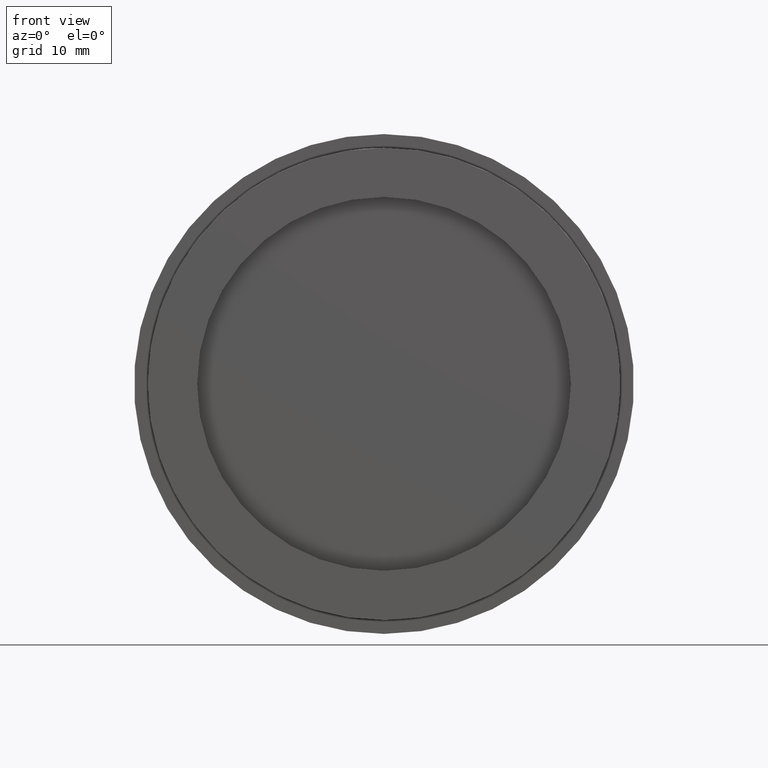
[diagram: clean part render]
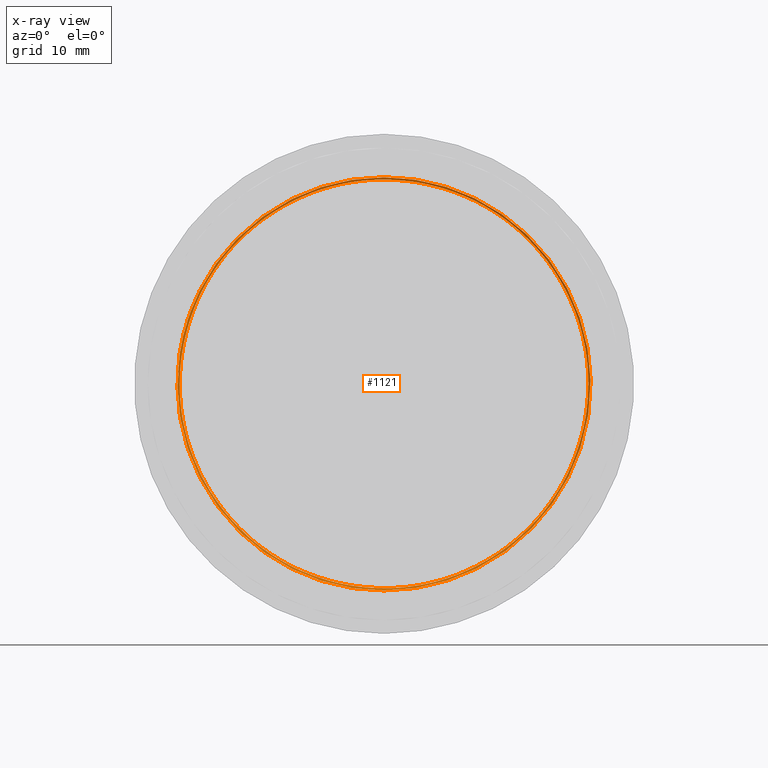
[diagram: x-ray — body ghosted, one internal face saturated and labeled with its STEP entity id]
A machine part, front view, then the same camera in x-ray: the body is ghosted and one INTERNAL B-rep face — a face not visible from any outside direction — is saturated and labeled: STEP entity #1121.
In plain terms, the highlighted face is a freeform B-spline surface patch.
Its self-contained STEP definition (entity closure, byte-faithful):
#8 = CARTESIAN_POINT ( 'NONE',  ( -18.05217278309771700, 6.999999999999997335, -10.44358133721729409 ) ) ;
#15 = CARTESIAN_POINT ( 'NONE',  ( -14.84924240491749536, 10.06593750086715211, 14.84924240491750247 ) ) ;
#17 = CARTESIAN_POINT ( 'NONE',  ( 8.627301415792780759, 11.05578125043357929, 20.82814808468749845 ) ) ;
#26 = CARTESIAN_POINT ( 'NONE',  ( -8.698484809834999609, 11.33156250086715389, -21.00000000000000355 ) ) ;
#27 = CARTESIAN_POINT ( 'NONE',  ( -14.72772475024013517, 12.22765625043357574, -14.72772475024013517 ) ) ;
#31 = CARTESIAN_POINT ( 'NONE',  ( 21.00000000000000000, 9.597187500867152110, -2.571758278209441661E-15 ) ) ;
#37 = CARTESIAN_POINT ( 'NONE',  ( -19.06179052937927665, 7.000000000000000000, -8.515060219628725946 ) ) ;
#48 = CARTESIAN_POINT ( 'NONE',  ( -8.627301415792768324, 11.43078125043357751, -20.82814808468750556 ) ) ;
#49 = CARTESIAN_POINT ( 'NONE',  ( 21.00000000000000000, 7.347187500867151222, -2.571758278209441661E-15 ) ) ;
#56 = CARTESIAN_POINT ( 'NONE',  ( 3.857637417314162689E-15, 11.65968750086715211, 21.00000000000000000 ) ) ;
#57 = CARTESIAN_POINT ( 'NONE',  ( 3.826068732611943404E-15, 11.00890625043357574, 20.82814808468750201 ) ) ;
#65 = CARTESIAN_POINT ( 'NONE',  ( -21.00000000000000000, 8.472187500867152110, 0.000000000000000000 ) ) ;
#76 = CARTESIAN_POINT ( 'NONE',  ( -20.82814808468750556, 10.02453125043357574, -8.627301415792766548 ) ) ;
#77 = CARTESIAN_POINT ( 'NONE',  ( -1.285879139104720831E-15, 7.534687500867151222, -21.00000000000000000 ) ) ;
#87 = CARTESIAN_POINT ( 'NONE',  ( 14.72772475024013339, 11.29015625043357574, -14.72772475024013517 ) ) ;
#95 = CARTESIAN_POINT ( 'NONE',  ( 21.00000000000000000, 12.59718750086715211, -2.571758278209441661E-15 ) ) ;
#108 = CARTESIAN_POINT ( 'NONE',  ( 20.82814808468751266, 9.649531250433575735, 8.627301415792762995 ) ) ;
#117 = CARTESIAN_POINT ( 'NONE',  ( -20.82814808468749845, 12.36828125043357574, 8.627301415792780759 ) ) ;
#122 = ORIENTED_EDGE ( 'NONE', *, *, #1502, .T. ) ;
#135 = CARTESIAN_POINT ( 'NONE',  ( -14.72772475024012984, 8.665156250433577512, 14.72772475024013694 ) ) ;
#138 = CARTESIAN_POINT ( 'NONE',  ( 21.00000000000000000, 8.847187500867152110, -2.571758278209441661E-15 ) ) ;
#144 = CARTESIAN_POINT ( 'NONE',  ( -14.72772475024013517, 9.227656250433577512, -14.72772475024013517 ) ) ;
#150 = CARTESIAN_POINT ( 'NONE',  ( -8.698484809834997833, 12.08156250086715566, -21.00000000000000711 ) ) ;
#162 = CARTESIAN_POINT ( 'NONE',  ( -17.25657555197260251, 7.000000000000000000, -11.66286212114047238 ) ) ;
#172 = CARTESIAN_POINT ( 'NONE',  ( -20.82814808468750201, 8.571406250433577512, 0.000000000000000000 ) ) ;
#181 = CARTESIAN_POINT ( 'NONE',  ( 21.00000000000000711, 11.05031250086715211, 8.698484809834992504 ) ) ;
#190 = VERTEX_POINT ( 'NONE', #855 ) ;
#192 = CARTESIAN_POINT ( 'NONE',  ( 3.826068732611943404E-15, 9.508906250433575735, 20.82814808468750201 ) ) ;
#195 = CARTESIAN_POINT ( 'NONE',  ( 21.00000000000000355, 8.144062500867152110, -8.698484809835001386 ) ) ;
#204 = CARTESIAN_POINT ( 'NONE',  ( 20.82814808468750556, 8.243281250433575735, -8.627301415792770101 ) ) ;
#213 = CARTESIAN_POINT ( 'NONE',  ( 14.84924240491750247, 10.25343750086715211, 14.84924240491749714 ) ) ;
#230 = CARTESIAN_POINT ( 'NONE',  ( 14.84924240491750247, 8.753437500867152110, 14.84924240491749714 ) ) ;
#237 = CARTESIAN_POINT ( 'NONE',  ( 14.72772475024013694, 9.602656250433575735, 14.72772475024013339 ) ) ;
#245 = CARTESIAN_POINT ( 'NONE',  ( -8.698484809834997833, 11.33156250086715389, -21.00000000000000711 ) ) ;
#275 = CARTESIAN_POINT ( 'NONE',  ( -1.285879139104720831E-15, 9.784687500867152110, -21.00000000000000000 ) ) ;
#285 = EDGE_CURVE ( 'NONE', #756, #5146, #5926, .T. ) ;
#299 = CARTESIAN_POINT ( 'NONE',  ( 14.72772475024013694, 7.352656250433575735, 14.72772475024013339 ) ) ;
#307 = CARTESIAN_POINT ( 'NONE',  ( -21.00000000000000711, 7.675312500867152110, -8.698484809834996057 ) ) ;
#310 = CARTESIAN_POINT ( 'NONE',  ( -1.275356244203981135E-15, 9.133906250433577512, -20.82814808468750201 ) ) ;
#318 = CARTESIAN_POINT ( 'NONE',  ( -21.00000000000000355, 9.175312500867152110, -8.698484809834997833 ) ) ;
#340 = CARTESIAN_POINT ( 'NONE',  ( -20.82814808468750201, 13.82140625043357574, 0.000000000000000000 ) ) ;
#345 = CARTESIAN_POINT ( 'NONE',  ( -14.72772475024012984, 9.415156250433575735, 14.72772475024013694 ) ) ;
#352 = CARTESIAN_POINT ( 'NONE',  ( 21.00000000000000355, 11.80031250086715211, 8.698484809834994280 ) ) ;
#359 = CARTESIAN_POINT ( 'NONE',  ( -14.72772475024013517, 13.72765625043357574, -14.72772475024013517 ) ) ;
#374 = CARTESIAN_POINT ( 'NONE',  ( -8.698484809834997833, 8.331562500867150334, -21.00000000000000711 ) ) ;
#389 = CARTESIAN_POINT ( 'NONE',  ( 3.857637417314162689E-15, 11.65968750086715211, 21.00000000000000000 ) ) ;
#397 = CARTESIAN_POINT ( 'NONE',  ( -8.627301415792771877, 13.21203125043357574, 20.82814808468749845 ) ) ;
#411 = CARTESIAN_POINT ( 'NONE',  ( 8.627301415792766548, 13.58703125043357574, -20.82814808468750556 ) ) ;
#422 = EDGE_CURVE ( 'NONE', #3961, #3842, #2253, .T. ) ;
#430 = CARTESIAN_POINT ( 'NONE',  ( -14.84924240491749536, 7.065937500867152110, 14.84924240491750247 ) ) ;
#436 = CARTESIAN_POINT ( 'NONE',  ( 20.82814808468750556, 12.74328125043357574, -8.627301415792770101 ) ) ;
#448 = CARTESIAN_POINT ( 'NONE',  ( -8.698484809834997833, 7.581562500867151222, -21.00000000000000711 ) ) ;
#457 = CARTESIAN_POINT ( 'NONE',  ( -20.41574200663903582, 6.999999999999997335, 4.919093241477956902 ) ) ;
#463 = EDGE_CURVE ( 'NONE', #1819, #3399, #5093, .T. ) ;
#477 = CARTESIAN_POINT ( 'NONE',  ( -21.00000000000000000, 12.97218750086715033, 0.000000000000000000 ) ) ;
#482 = CARTESIAN_POINT ( 'NONE',  ( -21.00000000000000000, 11.47218750086715211, 0.000000000000000000 ) ) ;
#483 = CARTESIAN_POINT ( 'NONE',  ( 3.826068732611943404E-15, 11.75890625043357574, 20.82814808468750201 ) ) ;
#488 = ORIENTED_EDGE ( 'NONE', *, *, #1903, .T. ) ;
#491 = CARTESIAN_POINT ( 'NONE',  ( -20.41574200663903582, 6.999999999999997335, 4.919093241477956902 ) ) ;
#499 = EDGE_CURVE ( 'NONE', #2232, #3707, #2921, .T. ) ;
#501 = CARTESIAN_POINT ( 'NONE',  ( 3.826068732611943404E-15, 12.50890625043357751, 20.82814808468750201 ) ) ;
#511 = CARTESIAN_POINT ( 'NONE',  ( -20.82814808468750556, 12.27453125043357574, -8.627301415792766548 ) ) ;
#512 = CARTESIAN_POINT ( 'NONE',  ( 14.84924240491750247, 9.503437500867152110, 14.84924240491749714 ) ) ;
#517 = CARTESIAN_POINT ( 'NONE',  ( -14.84924240491749536, 8.565937500867152110, 14.84924240491750247 ) ) ;
#529 = CARTESIAN_POINT ( 'NONE',  ( 8.627301415792780759, 10.30578125043357929, 20.82814808468749845 ) ) ;
#539 = CARTESIAN_POINT ( 'NONE',  ( -14.72772475024013517, 10.72765625043357574, -14.72772475024013517 ) ) ;
#558 = CARTESIAN_POINT ( 'NONE',  ( -14.72772475024012984, 10.16515625043357574, 14.72772475024013694 ) ) ;
#559 = CARTESIAN_POINT ( 'NONE',  ( 14.84924240491750247, 7.253437500867151222, 14.84924240491749714 ) ) ;
#567 = CARTESIAN_POINT ( 'NONE',  ( 8.627301415792766548, 12.83703125043357396, -20.82814808468750556 ) ) ;
#574 = CARTESIAN_POINT ( 'NONE',  ( -8.698484809835058229, 8.331562500867150334, -20.99999999999994316 ) ) ;
#581 = CARTESIAN_POINT ( 'NONE',  ( 8.698484809835067111, 10.20656250086715033, 20.99999999999993960 ) ) ;
#587 = CARTESIAN_POINT ( 'NONE',  ( 14.72772475024013339, 9.790156250433575735, -14.72772475024013517 ) ) ;
#591 = CARTESIAN_POINT ( 'NONE',  ( 3.857637417314162689E-15, 8.659687500867152110, 21.00000000000000000 ) ) ;
#597 = CARTESIAN_POINT ( 'NONE',  ( 14.72772475024013339, 12.79015625043357751, -14.72772475024013517 ) ) ;
#606 = CARTESIAN_POINT ( 'NONE',  ( -21.00000000000000000, 13.72218750086715211, 0.000000000000000000 ) ) ;
#619 = CARTESIAN_POINT ( 'NONE',  ( -1.275356244203981135E-15, 8.383906250433577512, -20.82814808468750201 ) ) ;
#628 = CARTESIAN_POINT ( 'NONE',  ( 20.82814808468750911, 9.649531250433575735, 8.627301415792762995 ) ) ;
#634 = CARTESIAN_POINT ( 'NONE',  ( -21.00000000000000000, 11.51906250086715211, 8.698484809835010267 ) ) ;
#645 = CARTESIAN_POINT ( 'NONE',  ( -20.82814808468750556, 7.036750819864526107, -6.378300697883421577 ) ) ;
#657 = CARTESIAN_POINT ( 'NONE',  ( 8.627301415792780759, 9.555781250433577512, 20.82814808468749845 ) ) ;
#664 = CARTESIAN_POINT ( 'NONE',  ( -8.698484809834910791, 10.58156250086715033, -21.00000000000009237 ) ) ;
#665 = CARTESIAN_POINT ( 'NONE',  ( 14.84924240491750247, 11.00343750086715033, 14.84924240491749714 ) ) ;
#676 = CARTESIAN_POINT ( 'NONE',  ( -8.627301415792771877, 8.712031250433575735, 20.82814808468749845 ) ) ;
#690 = CARTESIAN_POINT ( 'NONE',  ( -20.82814808468749845, 8.618281250433575735, 8.627301415792780759 ) ) ;
#699 = CARTESIAN_POINT ( 'NONE',  ( -21.00000000000000711, 10.67531250086715211, -8.698484809834996057 ) ) ;
#721 = CARTESIAN_POINT ( 'NONE',  ( 14.72772475024013694, 10.35265625043357751, 14.72772475024013339 ) ) ;
#723 = VERTEX_POINT ( 'NONE', #2161 ) ;
#728 = CARTESIAN_POINT ( 'NONE',  ( -1.285879139104720831E-15, 10.53468750086715033, -21.00000000000000000 ) ) ;
#729 = CARTESIAN_POINT ( 'NONE',  ( -8.698484809835001386, 10.86281250086715211, 21.00000000000000000 ) ) ;
#736 = CARTESIAN_POINT ( 'NONE',  ( -1.285879139104720831E-15, 7.534687500867151222, -21.00000000000000000 ) ) ;
#737 = VERTEX_POINT ( 'NONE', #5161 ) ;
#749 = CARTESIAN_POINT ( 'NONE',  ( -14.72772475024012984, 8.665156250433577512, 14.72772475024013694 ) ) ;
#756 = VERTEX_POINT ( 'NONE', #2775 ) ;
#758 = CARTESIAN_POINT ( 'NONE',  ( -8.698484809834997833, 10.58156250086715389, -21.00000000000000711 ) ) ;
#767 = CARTESIAN_POINT ( 'NONE',  ( 21.00000000000000355, 12.64406250086715033, -8.698484809835001386 ) ) ;
#769 = CARTESIAN_POINT ( 'NONE',  ( -1.285879139104720831E-15, 9.034687500867152110, -21.00000000000000000 ) ) ;
#781 = CARTESIAN_POINT ( 'NONE',  ( 20.82814808468750911, 7.399531250433574847, 8.627301415792762995 ) ) ;
#791 = CARTESIAN_POINT ( 'NONE',  ( 21.00000000000000711, 8.894062500867150334, -8.698484809834999609 ) ) ;
#794 = CARTESIAN_POINT ( 'NONE',  ( -20.82814808468750556, 7.774531250433575735, -8.627301415792766548 ) ) ;
#810 = CARTESIAN_POINT ( 'NONE',  ( -1.275356244203981135E-15, 13.63390625043357574, -20.82814808468750201 ) ) ;
#826 = CARTESIAN_POINT ( 'NONE',  ( -14.84924240491749536, 8.565937500867152110, 14.84924240491750247 ) ) ;
#829 = CARTESIAN_POINT ( 'NONE',  ( 14.72772475024013694, 8.102656250433575735, 14.72772475024013339 ) ) ;
#855 = CARTESIAN_POINT ( 'NONE',  ( -1.285879139104720831E-15, 12.03468750086715211, -21.00000000000000000 ) ) ;
#860 = CARTESIAN_POINT ( 'NONE',  ( 21.00000000000000711, 8.050312500867152110, 8.698484809834992504 ) ) ;
#874 = CARTESIAN_POINT ( 'NONE',  ( 8.698484809835036913, 11.70656250086715211, 20.99999999999997513 ) ) ;
#880 = CARTESIAN_POINT ( 'NONE',  ( -14.72772475024012984, 13.16515625043357574, 14.72772475024013694 ) ) ;
#883 = EDGE_CURVE ( 'NONE', #4452, #6230, #1086, .T. ) ;
#889 = VERTEX_POINT ( 'NONE', #5016 ) ;
#895 = CARTESIAN_POINT ( 'NONE',  ( 8.698484809834996057, 8.237812500867150334, -21.00000000000000711 ) ) ;
#905 = CARTESIAN_POINT ( 'NONE',  ( 14.84924240491750247, 12.50343750086715211, 14.84924240491749714 ) ) ;
#908 = CARTESIAN_POINT ( 'NONE',  ( 14.84924240491750247, 11.75343750086715211, 14.84924240491749714 ) ) ;
#910 = ORIENTED_EDGE ( 'NONE', *, *, #2418, .T. ) ;
#916 = CARTESIAN_POINT ( 'NONE',  ( -8.627301415792768324, 12.93078125043357574, -20.82814808468750556 ) ) ;
#929 = CARTESIAN_POINT ( 'NONE',  ( -1.285879139104720831E-15, 7.534687500867151222, -21.00000000000000000 ) ) ;
#940 = CARTESIAN_POINT ( 'NONE',  ( -1.285879139104720831E-15, 12.03468750086715211, -21.00000000000000000 ) ) ;
#955 = CARTESIAN_POINT ( 'NONE',  ( 3.857637417314162689E-15, 13.15968750086715211, 21.00000000000000000 ) ) ;
#960 = CARTESIAN_POINT ( 'NONE',  ( 8.627301415792766548, 12.08703125043357751, -20.82814808468750556 ) ) ;
#982 = CARTESIAN_POINT ( 'NONE',  ( -1.275356244203981135E-15, 10.63390625043357574, -20.82814808468750201 ) ) ;
#983 = CARTESIAN_POINT ( 'NONE',  ( 3.857637417314162689E-15, 7.159687500867152110, 21.00000000000000000 ) ) ;
#987 = CARTESIAN_POINT ( 'NONE',  ( -20.99999999999999645, 13.01906250086715033, 8.698484809835010267 ) ) ;
#992 = CARTESIAN_POINT ( 'NONE',  ( 3.826068732611943404E-15, 12.50890625043357751, 20.82814808468750201 ) ) ;
#998 = CARTESIAN_POINT ( 'NONE',  ( 3.857637417314162689E-15, 8.659687500867152110, 21.00000000000000000 ) ) ;
#1006 = CARTESIAN_POINT ( 'NONE',  ( -8.698484809835058229, 9.831562500867152110, -20.99999999999994316 ) ) ;
#1010 = CARTESIAN_POINT ( 'NONE',  ( -14.72772475024013517, 11.47765625043357574, -14.72772475024013517 ) ) ;
#1018 = CARTESIAN_POINT ( 'NONE',  ( -14.84924240491749536, 12.31593750086715211, 14.84924240491750247 ) ) ;
#1019 = CARTESIAN_POINT ( 'NONE',  ( 8.627301415792766548, 11.33703125043357574, -20.82814808468750556 ) ) ;
#1036 = CARTESIAN_POINT ( 'NONE',  ( 14.72772475024013694, 10.35265625043357751, 14.72772475024013339 ) ) ;
#1046 = CARTESIAN_POINT ( 'NONE',  ( -20.82814808468750556, 10.77453125043357574, -8.627301415792766548 ) ) ;
#1051 = CARTESIAN_POINT ( 'NONE',  ( -21.00000000000000355, 13.67531250086715211, -8.698484809834997833 ) ) ;
#1053 = CARTESIAN_POINT ( 'NONE',  ( -8.698484809834997833, 12.83156250086715033, -21.00000000000000711 ) ) ;
#1054 = DIRECTION ( 'NONE',  ( 0.8660254037844391517, 0.4999999999999990563, 0.000000000000000000 ) ) ;
#1055 = CARTESIAN_POINT ( 'NONE',  ( -20.93967720838711344, 7.000000000000005329, -0.8399392242754559756 ) ) ;
#1065 = CARTESIAN_POINT ( 'NONE',  ( -1.275356244203981135E-15, 12.13390625043357574, -20.82814808468750201 ) ) ;
#1074 = CARTESIAN_POINT ( 'NONE',  ( -20.82814808468749845, 13.11828125043357574, 8.627301415792780759 ) ) ;
#1077 = EDGE_CURVE ( 'NONE', #6230, #3810, #2173, .T. ) ;
#1086 =( BOUNDED_CURVE ( )  B_SPLINE_CURVE ( 2, ( #1544, #1634, #4035, #2650, #138, #4619, #230, #5460, #591 ),
 .UNSPECIFIED., .F., .T. ) 
 B_SPLINE_CURVE_WITH_KNOTS ( ( 3, 2, 2, 2, 3 ),
 ( 0.6249999999999997780, 0.6374999999999997335, 0.6499999999999998002, 0.6624999999999997558, 0.6749999999999998224 ),
 .UNSPECIFIED. ) 
 CURVE ( )  GEOMETRIC_REPRESENTATION_ITEM ( )  RATIONAL_B_SPLINE_CURVE ( ( 1.000000000000001332, 0.9238795325112854062, 1.000000000000000000, 0.9238795325112867385, 1.000000000000000000, 0.9238795325112867385, 1.000000000000000000, 0.9238795325112880708, 0.9999999999999986677 ) ) 
 REPRESENTATION_ITEM ( '' )  );
#1096 = CARTESIAN_POINT ( 'NONE',  ( 8.627301415792780759, 11.80578125043357751, 20.82814808468749845 ) ) ;
#1104 = CARTESIAN_POINT ( 'NONE',  ( 14.72772475024013339, 9.040156250433577512, -14.72772475024013517 ) ) ;
#1111 = CARTESIAN_POINT ( 'NONE',  ( -21.00000000000000711, 12.17531250086715211, -8.698484809834996057 ) ) ;
#1114 = CARTESIAN_POINT ( 'NONE',  ( 21.00000000000000000, 13.34718750086715211, -2.571758278209441661E-15 ) ) ;
#1121 = ADVANCED_FACE ( 'NONE', ( #4973 ), #5670, .F. ) ;
#1124 = CARTESIAN_POINT ( 'NONE',  ( -14.72772475024013517, 8.477656250433577512, -14.72772475024013517 ) ) ;
#1134 = CARTESIAN_POINT ( 'NONE',  ( -8.627301415792771877, 9.462031250433575735, 20.82814808468749845 ) ) ;
#1142 = CARTESIAN_POINT ( 'NONE',  ( -8.698484809835001386, 9.362812500867152110, 21.00000000000000000 ) ) ;
#1144 = CARTESIAN_POINT ( 'NONE',  ( 3.857637417314162689E-15, 13.15968750086715211, 21.00000000000000000 ) ) ;
#1152 = CARTESIAN_POINT ( 'NONE',  ( 8.627301415792766548, 9.087031250433575735, -20.82814808468750556 ) ) ;
#1156 = CARTESIAN_POINT ( 'NONE',  ( -20.99999999999999645, 12.26906250086715211, 8.698484809835010267 ) ) ;
#1167 = CARTESIAN_POINT ( 'NONE',  ( -1.275356244203981135E-15, 9.883906250433575735, -20.82814808468750201 ) ) ;
#1174 = CARTESIAN_POINT ( 'NONE',  ( 8.698484809835008491, 10.95656250086715566, 21.00000000000000000 ) ) ;
#1194 = CARTESIAN_POINT ( 'NONE',  ( -8.627301415792768324, 9.180781250433579288, -20.82814808468750556 ) ) ;
#1203 = CARTESIAN_POINT ( 'NONE',  ( 3.857637417314162689E-15, 10.15968750086715211, 21.00000000000000000 ) ) ;
#1224 = CARTESIAN_POINT ( 'NONE',  ( -14.72772475024012984, 9.415156250433575735, 14.72772475024013694 ) ) ;
#1233 = CARTESIAN_POINT ( 'NONE',  ( 21.00000000000000000, 11.84718750086715211, -2.571758278209441661E-15 ) ) ;
#1265 = CARTESIAN_POINT ( 'NONE',  ( 14.84924240491749714, 8.190937500867152110, -14.84924240491749892 ) ) ;
#1269 = CARTESIAN_POINT ( 'NONE',  ( 14.72772475024013339, 7.540156250433575735, -14.72772475024013517 ) ) ;
#1298 = CARTESIAN_POINT ( 'NONE',  ( -1.285879139104720831E-15, 10.53468750086715033, -21.00000000000000000 ) ) ;
#1299 = CARTESIAN_POINT ( 'NONE',  ( 5.626932196903778660, 6.754364697241439508, -21.00000000000000355 ) ) ;
#1302 = CARTESIAN_POINT ( 'NONE',  ( -20.82814808468749845, 9.368281250433575735, 8.627301415792780759 ) ) ;
#1319 = CARTESIAN_POINT ( 'NONE',  ( 20.82814808468750556, 13.49328125043357574, -8.627301415792770101 ) ) ;
#1326 = CARTESIAN_POINT ( 'NONE',  ( -14.84924240491749536, 13.06593750086715211, 14.84924240491750247 ) ) ;
#1330 = ORIENTED_EDGE ( 'NONE', *, *, #3308, .T. ) ;
#1332 = CARTESIAN_POINT ( 'NONE',  ( 10.49999863583243709, 6.721824320410791032, -18.18653426707565757 ) ) ;
#1335 = CARTESIAN_POINT ( 'NONE',  ( -8.627301415792768324, 8.430781250433575735, -20.82814808468750556 ) ) ;
#1359 = CARTESIAN_POINT ( 'NONE',  ( -1.285879139104720831E-15, 12.78468750086715211, -21.00000000000000000 ) ) ;
#1367 = CARTESIAN_POINT ( 'NONE',  ( -20.82814808468750556, 13.77453125043357751, -8.627301415792766548 ) ) ;
#1388 = CARTESIAN_POINT ( 'NONE',  ( 8.627301415792766548, 12.83703125043357574, -20.82814808468750556 ) ) ;
#1402 = CARTESIAN_POINT ( 'NONE',  ( -21.00000000000000000, 7.019062500867153886, 8.698484809835010267 ) ) ;
#1412 = ORIENTED_EDGE ( 'NONE', *, *, #499, .T. ) ;
#1417 = CARTESIAN_POINT ( 'NONE',  ( -14.84924240491749892, 7.628437500867151222, -14.84924240491749892 ) ) ;
#1434 = CARTESIAN_POINT ( 'NONE',  ( 20.82814808468750201, 11.19640625043357574, -2.550712488407962269E-15 ) ) ;
#1454 = CARTESIAN_POINT ( 'NONE',  ( -20.82814808468750201, 10.82140625043357574, 0.000000000000000000 ) ) ;
#1455 = CARTESIAN_POINT ( 'NONE',  ( 21.00000000000000355, 11.14406250086715211, -8.698484809835001386 ) ) ;
#1464 = CARTESIAN_POINT ( 'NONE',  ( -14.72772475024012984, 13.16515625043357574, 14.72772475024013694 ) ) ;
#1465 = CARTESIAN_POINT ( 'NONE',  ( 3.857637417314162689E-15, 8.659687500867152110, 21.00000000000000000 ) ) ;
#1467 = CARTESIAN_POINT ( 'NONE',  ( -8.698484809834988951, 13.58156250086715211, -21.00000000000000711 ) ) ;
#1477 = CARTESIAN_POINT ( 'NONE',  ( -8.627301415792771877, 7.212031250433576623, 20.82814808468749845 ) ) ;
#1480 = CARTESIAN_POINT ( 'NONE',  ( 14.72772475024013694, 11.85265625043357574, 14.72772475024013339 ) ) ;
#1489 = CARTESIAN_POINT ( 'NONE',  ( 20.82814808468750556, 12.74328125043357396, -8.627301415792770101 ) ) ;
#1497 = CARTESIAN_POINT ( 'NONE',  ( -8.698484809834884146, 8.612812500867150334, 21.00000000000011724 ) ) ;
#1501 = ORIENTED_EDGE ( 'NONE', *, *, #463, .T. ) ;
#1502 = EDGE_CURVE ( 'NONE', #889, #4452, #2586, .T. ) ;
#1507 = CARTESIAN_POINT ( 'NONE',  ( -1.285879139104720831E-15, 9.784687500867152110, -21.00000000000000000 ) ) ;
#1510 = CARTESIAN_POINT ( 'NONE',  ( -20.82814808468749845, 10.86828125043357929, 8.627301415792780759 ) ) ;
#1520 = CARTESIAN_POINT ( 'NONE',  ( -8.698484809834974740, 11.61281250086715211, 21.00000000000002842 ) ) ;
#1522 = CARTESIAN_POINT ( 'NONE',  ( 14.72772475024013339, 10.54015625043357751, -14.72772475024013517 ) ) ;
#1529 = CARTESIAN_POINT ( 'NONE',  ( -14.84924240491749892, 12.87843750086715033, -14.84924240491749892 ) ) ;
#1530 = CARTESIAN_POINT ( 'NONE',  ( -20.91407404234375278, 13.77179687565036481, 0.000000000000000000 ) ) ;
#1531 = CARTESIAN_POINT ( 'NONE',  ( -20.74264116466415686, 7.000000000000003553, 3.500335888054061151 ) ) ;
#1532 =( BOUNDED_CURVE ( )  B_SPLINE_CURVE ( 2, ( #4081, #2184, #4051, #3152, #3214, #5090, #6007, #664, #728 ),
 .UNSPECIFIED., .F., .F. ) 
 B_SPLINE_CURVE_WITH_KNOTS ( ( 3, 2, 2, 2, 3 ),
 ( 0.3750000000000000555, 0.3875000000000001221, 0.4000000000000001332, 0.4125000000000000888, 0.4250000000000001554 ),
 .UNSPECIFIED. ) 
 CURVE ( )  GEOMETRIC_REPRESENTATION_ITEM ( )  RATIONAL_B_SPLINE_CURVE ( ( 0.9999999999999996669, 0.9238795325112870716, 1.000000000000000000, 0.9238795325112867385, 1.000000000000000000, 0.9238795325112867385, 1.000000000000000000, 0.9238795325112857393, 1.000000000000001110 ) ) 
 REPRESENTATION_ITEM ( '' )  );
#1538 = CARTESIAN_POINT ( 'NONE',  ( -20.99999999999999645, 10.01906250086715211, 8.698484809835010267 ) ) ;
#1539 = EDGE_CURVE ( 'NONE', #190, #2337, #3282, .T. ) ;
#1541 = CARTESIAN_POINT ( 'NONE',  ( 20.82814808468750201, 11.94640625043357574, -2.550712488407962269E-15 ) ) ;
#1544 = CARTESIAN_POINT ( 'NONE',  ( -1.285879139104720831E-15, 9.034687500867152110, -21.00000000000000000 ) ) ;
#1552 = CARTESIAN_POINT ( 'NONE',  ( 20.82814808468750911, 13.39953125043357929, 8.627301415792762995 ) ) ;
#1559 = CARTESIAN_POINT ( 'NONE',  ( 21.00000000000000711, 12.55031250086715211, 8.698484809834992504 ) ) ;
#1570 = CARTESIAN_POINT ( 'NONE',  ( 8.627301415792766548, 10.58703125043357751, -20.82814808468750556 ) ) ;
#1574 = CARTESIAN_POINT ( 'NONE',  ( 3.857637417314162689E-15, 10.90968750086715033, 21.00000000000000000 ) ) ;
#1580 = CARTESIAN_POINT ( 'NONE',  ( 14.72772475024013694, 8.852656250433577512, 14.72772475024013339 ) ) ;
#1589 = CARTESIAN_POINT ( 'NONE',  ( -21.00000000000000711, 12.92531250086715211, -8.698484809834996057 ) ) ;
#1600 = CARTESIAN_POINT ( 'NONE',  ( 20.82814808468750556, 8.243281250433575735, -8.627301415792770101 ) ) ;
#1612 = CARTESIAN_POINT ( 'NONE',  ( 8.627301415792780759, 8.805781250433575735, 20.82814808468749845 ) ) ;
#1620 = CARTESIAN_POINT ( 'NONE',  ( -21.00000000000000000, 10.01906250086715211, 8.698484809835010267 ) ) ;
#1626 = CARTESIAN_POINT ( 'NONE',  ( 3.857637417314162689E-15, 10.15968750086715211, 21.00000000000000000 ) ) ;
#1631 = CARTESIAN_POINT ( 'NONE',  ( -8.627301415792771877, 9.462031250433575735, 20.82814808468749845 ) ) ;
#1634 = CARTESIAN_POINT ( 'NONE',  ( 8.698484809834877041, 8.987812500867150334, -21.00000000000011724 ) ) ;
#1642 = CARTESIAN_POINT ( 'NONE',  ( -1.275356244203981135E-15, 9.133906250433577512, -20.82814808468750201 ) ) ;
#1649 = CARTESIAN_POINT ( 'NONE',  ( 21.00000000000000711, 10.30031250086715211, 8.698484809834992504 ) ) ;
#1669 = CARTESIAN_POINT ( 'NONE',  ( 8.627301415792766548, 9.087031250433575735, -20.82814808468750556 ) ) ;
#1677 = CARTESIAN_POINT ( 'NONE',  ( 21.00000000000000711, 9.644062500867152110, -8.698484809834999609 ) ) ;
#1698 = CARTESIAN_POINT ( 'NONE',  ( -20.82814808468750201, 9.321406250433575735, 0.000000000000000000 ) ) ;
#1708 = CARTESIAN_POINT ( 'NONE',  ( -14.84924240491749536, 10.81593750086715033, 14.84924240491750247 ) ) ;
#1732 = CARTESIAN_POINT ( 'NONE',  ( 3.826068732611943404E-15, 7.258906250433576623, 20.82814808468750201 ) ) ;
#1740 = CARTESIAN_POINT ( 'NONE',  ( 21.00000000000000711, 9.550312500867150334, 8.698484809834992504 ) ) ;
#1743 = CARTESIAN_POINT ( 'NONE',  ( 20.82814808468751266, 8.899531250433573959, 8.627301415792762995 ) ) ;
#1765 =( BOUNDED_CURVE ( )  B_SPLINE_CURVE ( 2, ( #955, #5756, #1326, #987, #477, #5790, #4237, #4313, #1359 ),
 .UNSPECIFIED., .F., .F. ) 
 B_SPLINE_CURVE_WITH_KNOTS ( ( 3, 2, 2, 2, 3 ),
 ( 0.07500000000000006661, 0.08750000000000000833, 0.09999999999999997780, 0.1124999999999999056, 0.1249999999999998612 ),
 .UNSPECIFIED. ) 
 CURVE ( )  GEOMETRIC_REPRESENTATION_ITEM ( )  RATIONAL_B_SPLINE_CURVE ( ( 0.9999999999999995559, 0.9238795325112871826, 1.000000000000000000, 0.9238795325112867385, 1.000000000000000000, 0.9238795325112867385, 1.000000000000000000, 0.9238795325112876267, 0.9999999999999991118 ) ) 
 REPRESENTATION_ITEM ( '' )  );
#1774 = CARTESIAN_POINT ( 'NONE',  ( -1.285879139104720831E-15, 6.784687500867152110, -21.00000000000000000 ) ) ;
#1778 = CARTESIAN_POINT ( 'NONE',  ( 14.72772475024013339, 8.290156250433575735, -14.72772475024013517 ) ) ;
#1784 = CARTESIAN_POINT ( 'NONE',  ( 8.698484809834923226, 12.73781250086715211, -21.00000000000007816 ) ) ;
#1807 = CARTESIAN_POINT ( 'NONE',  ( 14.84924240491749714, 8.190937500867152110, -14.84924240491749892 ) ) ;
#1808 = CARTESIAN_POINT ( 'NONE',  ( 14.84924240491749714, 8.940937500867152110, -14.84924240491749892 ) ) ;
#1814 = CARTESIAN_POINT ( 'NONE',  ( 3.826068732611943404E-15, 7.258906250433576623, 20.82814808468750201 ) ) ;
#1819 = VERTEX_POINT ( 'NONE', #4451 ) ;
#1826 = ORIENTED_EDGE ( 'NONE', *, *, #6114, .F. ) ;
#1845 = CARTESIAN_POINT ( 'NONE',  ( -8.698484809835001386, 7.112812500867152110, 21.00000000000000000 ) ) ;
#1856 = ORIENTED_EDGE ( 'NONE', *, *, #3855, .T. ) ;
#1857 = CARTESIAN_POINT ( 'NONE',  ( 14.84924240491749714, 11.94093750086715211, -14.84924240491749892 ) ) ;
#1865 = CARTESIAN_POINT ( 'NONE',  ( -14.72772475024013517, 12.97765625043357574, -14.72772475024013517 ) ) ;
#1875 = CARTESIAN_POINT ( 'NONE',  ( -8.627301415792768324, 13.68078125043357574, -20.82814808468750556 ) ) ;
#1890 = CARTESIAN_POINT ( 'NONE',  ( -19.03059097221136398, 7.034071391520134497, 10.66789383762364096 ) ) ;
#1893 = CARTESIAN_POINT ( 'NONE',  ( -1.275356244203981135E-15, 6.883906250433576623, -20.82814808468750201 ) ) ;
#1897 = CARTESIAN_POINT ( 'NONE',  ( 14.72772475024013694, 12.60265625043357751, 14.72772475024013339 ) ) ;
#1903 = EDGE_CURVE ( 'NONE', #756, #2885, #5918, .T. ) ;
#1910 = CARTESIAN_POINT ( 'NONE',  ( 3.857637417314162689E-15, 7.159687500867152110, 21.00000000000000000 ) ) ;
#1926 = CARTESIAN_POINT ( 'NONE',  ( -20.82814808468750201, 7.071406250433576623, 0.000000000000000000 ) ) ;
#1929 = CARTESIAN_POINT ( 'NONE',  ( -14.72772475024012984, 10.91515625043357574, 14.72772475024013694 ) ) ;
#1942 = CARTESIAN_POINT ( 'NONE',  ( -20.82814808468749845, 11.61828125043357574, 8.627301415792780759 ) ) ;
#1949 = CARTESIAN_POINT ( 'NONE',  ( -21.00000000000000711, 13.67531250086715211, -8.698484809834996057 ) ) ;
#1957 = CARTESIAN_POINT ( 'NONE',  ( -14.72772475024012984, 7.165156250433576623, 14.72772475024013694 ) ) ;
#1958 = CARTESIAN_POINT ( 'NONE',  ( -21.00000000000000355, 9.925312500867153886, -8.698484809834997833 ) ) ;
#1960 = CARTESIAN_POINT ( 'NONE',  ( 14.72772475024013339, 10.54015625043357751, -14.72772475024013517 ) ) ;
#1968 = CARTESIAN_POINT ( 'NONE',  ( -14.84924240491749536, 11.56593750086715211, 14.84924240491750247 ) ) ;
#1969 = CARTESIAN_POINT ( 'NONE',  ( -20.82814808468749845, 10.86828125043357574, 8.627301415792780759 ) ) ;
#1972 = CARTESIAN_POINT ( 'NONE',  ( 8.698484809834935660, 9.737812500867152110, -21.00000000000006040 ) ) ;
#1976 = ORIENTED_EDGE ( 'NONE', *, *, #4008, .T. ) ;
#1980 = CARTESIAN_POINT ( 'NONE',  ( -20.81742133131375283, 7.000000000000005329, -2.285973763903029532 ) ) ;
#1993 = CARTESIAN_POINT ( 'NONE',  ( 20.82814808468750201, 11.19640625043357574, -2.550712488407962269E-15 ) ) ;
#1994 = CARTESIAN_POINT ( 'NONE',  ( 8.698484809834997833, 11.23781250086715211, -21.00000000000000355 ) ) ;
#2000 = CARTESIAN_POINT ( 'NONE',  ( -20.99999999999999645, 11.51906250086715211, 8.698484809835010267 ) ) ;
#2001 = CARTESIAN_POINT ( 'NONE',  ( -14.72772475024013517, 12.97765625043357574, -14.72772475024013517 ) ) ;
#2009 = CARTESIAN_POINT ( 'NONE',  ( -8.698484809834997833, 13.58156250086715211, -21.00000000000000711 ) ) ;
#2022 = CARTESIAN_POINT ( 'NONE',  ( -14.72772475024012984, 12.41515625043357751, 14.72772475024013694 ) ) ;
#2023 = CARTESIAN_POINT ( 'NONE',  ( 8.698484809834997833, 7.487812500867151222, -21.00000000000000355 ) ) ;
#2025 = EDGE_CURVE ( 'NONE', #2741, #2232, #1532, .T. ) ;
#2033 = CARTESIAN_POINT ( 'NONE',  ( -8.627301415792771877, 10.96203125043357751, 20.82814808468749845 ) ) ;
#2039 = CARTESIAN_POINT ( 'NONE',  ( -21.00000000000000000, 13.01906250086715033, 8.698484809835010267 ) ) ;
#2048 = CARTESIAN_POINT ( 'NONE',  ( -8.698484809834942766, 10.11281250086715211, 21.00000000000005684 ) ) ;
#2050 = CARTESIAN_POINT ( 'NONE',  ( 14.72772475024013694, 11.10265625043357574, 14.72772475024013339 ) ) ;
#2059 = CARTESIAN_POINT ( 'NONE',  ( -20.82814808468750556, 10.02453125043357574, -8.627301415792766548 ) ) ;
#2065 = CARTESIAN_POINT ( 'NONE',  ( 21.00000000000000000, 13.34718750086715211, -2.571758278209441661E-15 ) ) ;
#2070 = CARTESIAN_POINT ( 'NONE',  ( 14.84924240491749714, 10.44093750086715211, -14.84924240491749892 ) ) ;
#2076 = CARTESIAN_POINT ( 'NONE',  ( 8.627301415792766548, 7.587031250433574847, -20.82814808468750556 ) ) ;
#2087 = CARTESIAN_POINT ( 'NONE',  ( 20.82814808468750556, 8.993281250433575735, -8.627301415792770101 ) ) ;
#2095 = CARTESIAN_POINT ( 'NONE',  ( 14.84924240491749714, 11.94093750086715211, -14.84924240491749892 ) ) ;
#2115 = CARTESIAN_POINT ( 'NONE',  ( 14.72772475024013339, 8.290156250433575735, -14.72772475024013517 ) ) ;
#2123 = CARTESIAN_POINT ( 'NONE',  ( -8.698484809834997833, 9.831562500867152110, -21.00000000000000711 ) ) ;
#2133 = CARTESIAN_POINT ( 'NONE',  ( 8.627301415792780759, 8.055781250433575735, 20.82814808468749845 ) ) ;
#2137 = CARTESIAN_POINT ( 'NONE',  ( -1.285879139104720831E-15, 12.03468750086715211, -21.00000000000000000 ) ) ;
#2146 = CARTESIAN_POINT ( 'NONE',  ( 14.72772475024013694, 8.102656250433575735, 14.72772475024013339 ) ) ;
#2154 = CARTESIAN_POINT ( 'NONE',  ( -14.84924240491749536, 10.06593750086715211, 14.84924240491750247 ) ) ;
#2161 = CARTESIAN_POINT ( 'NONE',  ( -1.285879139104720831E-15, 9.784687500867152110, -21.00000000000000000 ) ) ;
#2164 = ORIENTED_EDGE ( 'NONE', *, *, #883, .T. ) ;
#2173 =( BOUNDED_CURVE ( )  B_SPLINE_CURVE ( 2, ( #998, #1497, #517, #5979, #65, #2970, #2426, #574, #3026 ),
 .UNSPECIFIED., .F., .F. ) 
 B_SPLINE_CURVE_WITH_KNOTS ( ( 3, 2, 2, 2, 3 ),
 ( 0.6749999999999998224, 0.6874999999999997780, 0.6999999999999998446, 0.7124999999999999112, 0.7249999999999998668 ),
 .UNSPECIFIED. ) 
 CURVE ( )  GEOMETRIC_REPRESENTATION_ITEM ( )  RATIONAL_B_SPLINE_CURVE ( ( 1.000000000000001332, 0.9238795325112854062, 1.000000000000000000, 0.9238795325112867385, 1.000000000000000000, 0.9238795325112867385, 1.000000000000000000, 0.9238795325112874046, 0.9999999999999993339 ) ) 
 REPRESENTATION_ITEM ( '' )  );
#2177 = CARTESIAN_POINT ( 'NONE',  ( 20.82814808468750911, 10.39953125043357574, 8.627301415792762995 ) ) ;
#2184 = CARTESIAN_POINT ( 'NONE',  ( -8.698484809835031584, 10.86281250086715211, 20.99999999999997513 ) ) ;
#2185 = CARTESIAN_POINT ( 'NONE',  ( 3.857637417314162689E-15, 11.65968750086715211, 21.00000000000000000 ) ) ;
#2199 = ORIENTED_EDGE ( 'NONE', *, *, #2025, .T. ) ;
#2208 = CARTESIAN_POINT ( 'NONE',  ( -20.82814808468750556, 7.024531250433575735, -8.627301415792766548 ) ) ;
#2218 = CARTESIAN_POINT ( 'NONE',  ( 8.698484809834996057, 10.48781250086715211, -21.00000000000000711 ) ) ;
#2232 = VERTEX_POINT ( 'NONE', #1298 ) ;
#2245 = CARTESIAN_POINT ( 'NONE',  ( 8.698484809834971188, 13.20656250086715211, 21.00000000000003553 ) ) ;
#2252 = CARTESIAN_POINT ( 'NONE',  ( -14.84924240491749892, 7.628437500867151222, -14.84924240491749892 ) ) ;
#2253 =( BOUNDED_CURVE ( )  B_SPLINE_CURVE ( 2, ( #3844, #6279, #430, #1890, #2854 ),
 .UNSPECIFIED., .F., .T. ) 
 B_SPLINE_CURVE_WITH_KNOTS ( ( 3, 2, 3 ),
 ( 0.8749999999999998890, 0.8874999999999999556, 0.8962099158257661458 ),
 .UNSPECIFIED. ) 
 CURVE ( )  GEOMETRIC_REPRESENTATION_ITEM ( )  RATIONAL_B_SPLINE_CURVE ( ( 1.000000000000000666, 0.9238795325112860723, 1.000000000000000000, 0.9469597708444271733, 0.9678356907007563681 ) ) 
 REPRESENTATION_ITEM ( '' )  );
#2256 = CARTESIAN_POINT ( 'NONE',  ( -8.627301415792771877, 7.962031250433576623, 20.82814808468749845 ) ) ;
#2285 = CARTESIAN_POINT ( 'NONE',  ( -14.84924240491749892, 9.128437500867152110, -14.84924240491749892 ) ) ;
#2288 = CARTESIAN_POINT ( 'NONE',  ( -14.72772475024013517, 7.727656250433575735, -14.72772475024013517 ) ) ;
#2318 = CARTESIAN_POINT ( 'NONE',  ( -8.698484809835001386, 7.862812500867151222, 21.00000000000000000 ) ) ;
#2330 = VERTEX_POINT ( 'NONE', #4281 ) ;
#2333 = ORIENTED_EDGE ( 'NONE', *, *, #2442, .T. ) ;
#2337 = VERTEX_POINT ( 'NONE', #3386 ) ;
#2340 = CARTESIAN_POINT ( 'NONE',  ( -20.82814808468750556, 13.02453125043357929, -8.627301415792766548 ) ) ;
#2347 = ORIENTED_EDGE ( 'NONE', *, *, #3769, .F. ) ;
#2352 = CARTESIAN_POINT ( 'NONE',  ( 8.698484809835008491, 7.206562500867152998, 21.00000000000000000 ) ) ;
#2369 = ORIENTED_EDGE ( 'NONE', *, *, #285, .F. ) ;
#2386 = CARTESIAN_POINT ( 'NONE',  ( -1.285879139104720831E-15, 9.034687500867152110, -21.00000000000000000 ) ) ;
#2409 = CARTESIAN_POINT ( 'NONE',  ( 20.82814808468750556, 11.24328125043357574, -8.627301415792770101 ) ) ;
#2418 = EDGE_CURVE ( 'NONE', #3810, #1819, #4823, .T. ) ;
#2420 = CARTESIAN_POINT ( 'NONE',  ( 3.857637417314162689E-15, 12.40968750086715211, 21.00000000000000000 ) ) ;
#2421 = CARTESIAN_POINT ( 'NONE',  ( -8.627301415792771877, 11.71203125043357574, 20.82814808468749845 ) ) ;
#2426 = CARTESIAN_POINT ( 'NONE',  ( -14.84924240491749892, 8.378437500867152110, -14.84924240491749892 ) ) ;
#2433 = CARTESIAN_POINT ( 'NONE',  ( -21.00000000000000000, 7.722187500867152110, 0.000000000000000000 ) ) ;
#2438 = CARTESIAN_POINT ( 'NONE',  ( -20.82814808468750556, 11.52453125043357396, -8.627301415792766548 ) ) ;
#2439 = CARTESIAN_POINT ( 'NONE',  ( 8.698484809835067111, 7.206562500867152110, 20.99999999999993960 ) ) ;
#2442 = EDGE_CURVE ( 'NONE', #4834, #190, #3947, .T. ) ;
#2449 = CARTESIAN_POINT ( 'NONE',  ( 8.627301415792780759, 11.05578125043358106, 20.82814808468749845 ) ) ;
#2451 = CARTESIAN_POINT ( 'NONE',  ( 8.698484809835006715, 9.456562500867152110, 20.99999999999999645 ) ) ;
#2456 = CARTESIAN_POINT ( 'NONE',  ( -14.84924240491749536, 12.31593750086715211, 14.84924240491750247 ) ) ;
#2468 = CARTESIAN_POINT ( 'NONE',  ( -8.627301415792771877, 10.21203125043357574, 20.82814808468749845 ) ) ;
#2469 = CARTESIAN_POINT ( 'NONE',  ( 21.00000000000000000, 11.09718750086715211, -2.571758278209441661E-15 ) ) ;
#2478 = CARTESIAN_POINT ( 'NONE',  ( -8.627301415792768324, 10.68078125043357929, -20.82814808468750556 ) ) ;
#2486 = CARTESIAN_POINT ( 'NONE',  ( -14.84924240491749892, 13.62843750086715211, -14.84924240491749892 ) ) ;
#2492 = CARTESIAN_POINT ( 'NONE',  ( 21.00000000000000355, 10.39406250086715211, -8.698484809835001386 ) ) ;
#2496 = CARTESIAN_POINT ( 'NONE',  ( -20.82814808468750201, 10.07140625043357574, 0.000000000000000000 ) ) ;
#2497 = CARTESIAN_POINT ( 'NONE',  ( 3.857637417314162689E-15, 12.40968750086715211, 21.00000000000000000 ) ) ;
#2506 = CARTESIAN_POINT ( 'NONE',  ( -8.627301415792768324, 11.43078125043357751, -20.82814808468750556 ) ) ;
#2507 = VECTOR ( 'NONE', #1054, 1000.000000000000114 ) ;
#2514 = CARTESIAN_POINT ( 'NONE',  ( 21.00000000000000711, 13.30031250086715211, 8.698484809834992504 ) ) ;
#2527 = CARTESIAN_POINT ( 'NONE',  ( 20.82814808468750556, 9.743281250433575735, -8.627301415792770101 ) ) ;
#2538 = CARTESIAN_POINT ( 'NONE',  ( 20.82814808468750201, 12.69640625043357751, -2.550712488407962269E-15 ) ) ;
#2547 = CARTESIAN_POINT ( 'NONE',  ( 14.84924240491749714, 13.44093750086715211, -14.84924240491749892 ) ) ;
#2557 = CARTESIAN_POINT ( 'NONE',  ( 20.82814808468750556, 7.493281250433575735, -8.627301415792770101 ) ) ;
#2566 = CARTESIAN_POINT ( 'NONE',  ( 14.72772475024013339, 7.540156250433575735, -14.72772475024013517 ) ) ;
#2572 = CARTESIAN_POINT ( 'NONE',  ( -21.00000000000000711, 11.42531250086715033, -8.698484809834996057 ) ) ;
#2574 = CARTESIAN_POINT ( 'NONE',  ( 3.857637417314162689E-15, 7.159687500867152110, 21.00000000000000000 ) ) ;
#2583 = CARTESIAN_POINT ( 'NONE',  ( 20.82814808468750201, 7.446406250433575735, -2.550712488407962269E-15 ) ) ;
#2586 =( BOUNDED_CURVE ( )  B_SPLINE_CURVE ( 2, ( #6109, #4711, #3676, #5639, #3193, #318, #5165, #4223, #769 ),
 .UNSPECIFIED., .F., .T. ) 
 B_SPLINE_CURVE_WITH_KNOTS ( ( 3, 2, 2, 2, 3 ),
 ( 0.5749999999999999556, 0.5874999999999999112, 0.5999999999999998668, 0.6124999999999998224, 0.6249999999999997780 ),
 .UNSPECIFIED. ) 
 CURVE ( )  GEOMETRIC_REPRESENTATION_ITEM ( )  RATIONAL_B_SPLINE_CURVE ( ( 1.000000000000000000, 0.9238795325112867385, 1.000000000000000000, 0.9238795325112867385, 1.000000000000000000, 0.9238795325112867385, 1.000000000000000000, 0.9238795325112880708, 0.9999999999999986677 ) ) 
 REPRESENTATION_ITEM ( '' )  );
#2595 = CARTESIAN_POINT ( 'NONE',  ( -8.627301415792768324, 9.930781250433579288, -20.82814808468750556 ) ) ;
#2604 = CARTESIAN_POINT ( 'NONE',  ( 8.698484809834996057, 11.98781250086715389, -21.00000000000000711 ) ) ;
#2613 = CARTESIAN_POINT ( 'NONE',  ( -20.82814808468749845, 8.618281250433575735, 8.627301415792780759 ) ) ;
#2616 = CARTESIAN_POINT ( 'NONE',  ( -14.84924240491749892, 12.12843750086715211, -14.84924240491749892 ) ) ;
#2625 = EDGE_CURVE ( 'NONE', #2337, #737, #3494, .T. ) ;
#2628 = CARTESIAN_POINT ( 'NONE',  ( -1.275356244203981135E-15, 8.383906250433577512, -20.82814808468750201 ) ) ;
#2637 = CARTESIAN_POINT ( 'NONE',  ( 14.84924240491749714, 10.44093750086715211, -14.84924240491749892 ) ) ;
#2650 = CARTESIAN_POINT ( 'NONE',  ( 21.00000000000000355, 8.894062500867150334, -8.698484809835001386 ) ) ;
#2656 = CARTESIAN_POINT ( 'NONE',  ( -8.627301415792771877, 10.21203125043357751, 20.82814808468749845 ) ) ;
#2665 = CARTESIAN_POINT ( 'NONE',  ( 8.698484809835008491, 9.456562500867152110, 21.00000000000000000 ) ) ;
#2690 = CARTESIAN_POINT ( 'NONE',  ( -14.72772475024013517, 7.727656250433575735, -14.72772475024013517 ) ) ;
#2699 = CARTESIAN_POINT ( 'NONE',  ( -21.00000000000000000, 9.972187500867152110, 0.000000000000000000 ) ) ;
#2724 = CARTESIAN_POINT ( 'NONE',  ( 21.00000000000000355, 13.39406250086715211, -8.698484809835001386 ) ) ;
#2731 = CARTESIAN_POINT ( 'NONE',  ( 8.698484809835008491, 8.706562500867150334, 21.00000000000000000 ) ) ;
#2741 = VERTEX_POINT ( 'NONE', #1574 ) ;
#2760 = CARTESIAN_POINT ( 'NONE',  ( 14.84924240491750247, 13.25343750086715211, 14.84924240491749714 ) ) ;
#2768 = CARTESIAN_POINT ( 'NONE',  ( -14.84924240491749892, 6.878437500867152110, -14.84924240491749892 ) ) ;
#2771 = CARTESIAN_POINT ( 'NONE',  ( -8.627301415792768324, 9.180781250433579288, -20.82814808468750556 ) ) ;
#2775 = CARTESIAN_POINT ( 'NONE',  ( -21.00000000000000000, 13.72218750086715211, 0.000000000000000000 ) ) ;
#2801 = CARTESIAN_POINT ( 'NONE',  ( 8.698484809834996057, 8.987812500867152110, -21.00000000000000711 ) ) ;
#2821 = CARTESIAN_POINT ( 'NONE',  ( -20.82814808468750201, 13.07140625043357574, 0.000000000000000000 ) ) ;
#2835 = CARTESIAN_POINT ( 'NONE',  ( -1.285879139104720831E-15, 8.284687500867152110, -21.00000000000000000 ) ) ;
#2845 = VERTEX_POINT ( 'NONE', #5553 ) ;
#2854 = CARTESIAN_POINT ( 'NONE',  ( -20.41574200663903582, 6.999999999999997335, 4.919093241477956902 ) ) ;
#2859 = CARTESIAN_POINT ( 'NONE',  ( -20.82814808468749845, 13.11828125043357574, 8.627301415792780759 ) ) ;
#2870 = CARTESIAN_POINT ( 'NONE',  ( -21.00000000000000000, 8.519062500867150334, 8.698484809835010267 ) ) ;
#2885 = VERTEX_POINT ( 'NONE', #6113 ) ;
#2905 = CARTESIAN_POINT ( 'NONE',  ( -8.627301415792771877, 13.21203125043357574, 20.82814808468749845 ) ) ;
#2907 = CARTESIAN_POINT ( 'NONE',  ( 21.00000000000000355, 9.644062500867152110, -8.698484809835001386 ) ) ;
#2912 = CARTESIAN_POINT ( 'NONE',  ( 8.698484809835008491, 12.45656250086715566, 21.00000000000000000 ) ) ;
#2921 =( BOUNDED_CURVE ( )  B_SPLINE_CURVE ( 2, ( #4087, #3608, #2070, #2492, #5931, #3091, #4979, #581, #1626 ),
 .UNSPECIFIED., .F., .T. ) 
 B_SPLINE_CURVE_WITH_KNOTS ( ( 3, 2, 2, 2, 3 ),
 ( 0.4250000000000001554, 0.4375000000000001110, 0.4500000000000000666, 0.4624999999999999667, 0.4749999999999998668 ),
 .UNSPECIFIED. ) 
 CURVE ( )  GEOMETRIC_REPRESENTATION_ITEM ( )  RATIONAL_B_SPLINE_CURVE ( ( 0.9999999999999990008, 0.9238795325112877377, 1.000000000000000000, 0.9238795325112867385, 1.000000000000000000, 0.9238795325112867385, 1.000000000000000000, 0.9238795325112874046, 0.9999999999999993339 ) ) 
 REPRESENTATION_ITEM ( '' )  );
#2926 = CARTESIAN_POINT ( 'NONE',  ( 8.627301415792766548, 12.08703125043357574, -20.82814808468750556 ) ) ;
#2935 = CARTESIAN_POINT ( 'NONE',  ( 3.857637417314162689E-15, 7.909687500867152110, 21.00000000000000000 ) ) ;
#2936 = CARTESIAN_POINT ( 'NONE',  ( -8.627301415792771877, 12.46203125043357751, 20.82814808468749845 ) ) ;
#2937 = CARTESIAN_POINT ( 'NONE',  ( 14.84924240491749714, 9.690937500867152110, -14.84924240491749892 ) ) ;
#2941 = ORIENTED_EDGE ( 'NONE', *, *, #4856, .T. ) ;
#2942 = CARTESIAN_POINT ( 'NONE',  ( 21.00000000000000711, 12.64406250086715033, -8.698484809834999609 ) ) ;
#2954 = CARTESIAN_POINT ( 'NONE',  ( 20.82814808468751266, 10.39953125043357751, 8.627301415792762995 ) ) ;
#2955 = CARTESIAN_POINT ( 'NONE',  ( -1.285879139104720831E-15, 11.28468750086715211, -21.00000000000000000 ) ) ;
#2965 = CARTESIAN_POINT ( 'NONE',  ( 14.72772475024013694, 11.10265625043357574, 14.72772475024013339 ) ) ;
#2970 = CARTESIAN_POINT ( 'NONE',  ( -21.00000000000000355, 8.425312500867150334, -8.698484809834997833 ) ) ;
#2981 = CARTESIAN_POINT ( 'NONE',  ( 14.72772475024013339, 12.04015625043357574, -14.72772475024013517 ) ) ;
#2982 = CARTESIAN_POINT ( 'NONE',  ( 21.00000000000000355, 11.05031250086715211, 8.698484809834994280 ) ) ;
#2990 = CARTESIAN_POINT ( 'NONE',  ( 21.00000000000000000, 8.097187500867152110, -2.571758278209441661E-15 ) ) ;
#2991 =( BOUNDED_CURVE ( )  B_SPLINE_CURVE ( 2, ( #3866, #1972, #2937, #2907, #31, #4322, #512, #2451, #4876 ),
 .UNSPECIFIED., .F., .F. ) 
 B_SPLINE_CURVE_WITH_KNOTS ( ( 3, 2, 2, 2, 3 ),
 ( 0.5249999999999999112, 0.5374999999999998668, 0.5500000000000000444, 0.5625000000000000000, 0.5749999999999999556 ),
 .UNSPECIFIED. ) 
 CURVE ( )  GEOMETRIC_REPRESENTATION_ITEM ( )  RATIONAL_B_SPLINE_CURVE ( ( 1.000000000000000666, 0.9238795325112860723, 1.000000000000000000, 0.9238795325112867385, 1.000000000000000000, 0.9238795325112867385, 1.000000000000000000, 0.9238795325112867385, 1.000000000000000000 ) ) 
 REPRESENTATION_ITEM ( '' )  );
#2992 = CARTESIAN_POINT ( 'NONE',  ( -1.275356244203981135E-15, 12.88390625043357751, -20.82814808468750201 ) ) ;
#3011 = CARTESIAN_POINT ( 'NONE',  ( -14.72772475024013517, 9.977656250433575735, -14.72772475024013517 ) ) ;
#3019 = CARTESIAN_POINT ( 'NONE',  ( 8.627301415792780759, 13.30578125043357574, 20.82814808468749845 ) ) ;
#3026 = CARTESIAN_POINT ( 'NONE',  ( -1.285879139104720831E-15, 8.284687500867152110, -21.00000000000000000 ) ) ;
#3028 = CARTESIAN_POINT ( 'NONE',  ( 21.00000000000000355, 13.30031250086715211, 8.698484809834994280 ) ) ;
#3038 = CARTESIAN_POINT ( 'NONE',  ( -20.82814808468749845, 11.61828125043357574, 8.627301415792780759 ) ) ;
#3048 = CARTESIAN_POINT ( 'NONE',  ( 8.627301415792766548, 8.337031250433575735, -20.82814808468750556 ) ) ;
#3055 = CARTESIAN_POINT ( 'NONE',  ( 8.698484809834996057, 11.23781250086715211, -21.00000000000000711 ) ) ;
#3057 = CARTESIAN_POINT ( 'NONE',  ( -1.285879139104720831E-15, 13.53468750086715211, -21.00000000000000000 ) ) ;
#3066 = CARTESIAN_POINT ( 'NONE',  ( 8.627301415792766548, 8.337031250433575735, -20.82814808468750556 ) ) ;
#3078 = CARTESIAN_POINT ( 'NONE',  ( 20.82814808468750201, 7.446406250433575735, -2.550712488407962269E-15 ) ) ;
#3086 = CARTESIAN_POINT ( 'NONE',  ( 21.00000000000000711, 11.80031250086715033, 8.698484809834992504 ) ) ;
#3091 = CARTESIAN_POINT ( 'NONE',  ( 21.00000000000000355, 10.30031250086715211, 8.698484809834994280 ) ) ;
#3110 = CARTESIAN_POINT ( 'NONE',  ( 3.826068732611943404E-15, 9.508906250433575735, 20.82814808468750201 ) ) ;
#3120 = CARTESIAN_POINT ( 'NONE',  ( 21.00000000000000000, 11.09718750086715211, -2.571758278209441661E-15 ) ) ;
#3143 = CARTESIAN_POINT ( 'NONE',  ( -14.72772475024012984, 7.915156250433576623, 14.72772475024013694 ) ) ;
#3152 = CARTESIAN_POINT ( 'NONE',  ( -20.99999999999999645, 10.76906250086715211, 8.698484809835010267 ) ) ;
#3153 = CARTESIAN_POINT ( 'NONE',  ( 14.84924240491750247, 9.503437500867152110, 14.84924240491749714 ) ) ;
#3173 = CARTESIAN_POINT ( 'NONE',  ( -20.82814808468749845, 10.11828125043357751, 8.627301415792780759 ) ) ;
#3175 = ORIENTED_EDGE ( 'NONE', *, *, #1077, .T. ) ;
#3182 = CARTESIAN_POINT ( 'NONE',  ( -21.00000000000000000, 10.76906250086715211, 8.698484809835010267 ) ) ;
#3190 = CARTESIAN_POINT ( 'NONE',  ( 14.84924240491749714, 12.69093750086715211, -14.84924240491749892 ) ) ;
#3193 = CARTESIAN_POINT ( 'NONE',  ( -21.00000000000000000, 9.222187500867152110, 0.000000000000000000 ) ) ;
#3214 = CARTESIAN_POINT ( 'NONE',  ( -21.00000000000000000, 10.72218750086715033, 0.000000000000000000 ) ) ;
#3215 = CARTESIAN_POINT ( 'NONE',  ( 3.857637417314162689E-15, 7.909687500867152110, 21.00000000000000000 ) ) ;
#3224 = CARTESIAN_POINT ( 'NONE',  ( 3.857637417314162689E-15, 12.40968750086715211, 21.00000000000000000 ) ) ;
#3249 = CARTESIAN_POINT ( 'NONE',  ( -8.698484809834997833, 9.081562500867152110, -21.00000000000000711 ) ) ;
#3252 = CARTESIAN_POINT ( 'NONE',  ( -20.82814808468750556, 8.524531250433575735, -8.627301415792766548 ) ) ;
#3267 = CARTESIAN_POINT ( 'NONE',  ( 20.82814808468750201, 13.44640625043357574, -2.550712488407962269E-15 ) ) ;
#3279 = CARTESIAN_POINT ( 'NONE',  ( 21.00000000000000711, 8.144062500867152110, -8.698484809834999609 ) ) ;
#3282 =( BOUNDED_CURVE ( )  B_SPLINE_CURVE ( 2, ( #940, #4746, #1857, #3808, #5232, #352, #908, #874, #389 ),
 .UNSPECIFIED., .F., .T. ) 
 B_SPLINE_CURVE_WITH_KNOTS ( ( 3, 2, 2, 2, 3 ),
 ( 0.2249999999999999500, 0.2374999999999999334, 0.2499999999999999445, 0.2624999999999999556, 0.2749999999999999667 ),
 .UNSPECIFIED. ) 
 CURVE ( )  GEOMETRIC_REPRESENTATION_ITEM ( )  RATIONAL_B_SPLINE_CURVE ( ( 1.000000000000000444, 0.9238795325112864054, 1.000000000000000000, 0.9238795325112867385, 1.000000000000000000, 0.9238795325112867385, 1.000000000000000000, 0.9238795325112870716, 0.9999999999999996669 ) ) 
 REPRESENTATION_ITEM ( '' )  );
#3283 = CARTESIAN_POINT ( 'NONE',  ( 8.627301415792780759, 8.805781250433575735, 20.82814808468749845 ) ) ;
#3301 = CARTESIAN_POINT ( 'NONE',  ( 8.627301415792780759, 13.30578125043357574, 20.82814808468749845 ) ) ;
#3308 = EDGE_CURVE ( 'NONE', #3707, #723, #4779, .T. ) ;
#3316 = CARTESIAN_POINT ( 'NONE',  ( 21.00000000000000000, 8.847187500867152110, -2.571758278209441661E-15 ) ) ;
#3350 = CARTESIAN_POINT ( 'NONE',  ( 20.82814808468750556, 13.49328125043357574, -8.627301415792770101 ) ) ;
#3379 = B_SPLINE_CURVE_WITH_KNOTS ( 'NONE', 3,
 ( #6305, #3454, #8, #5867, #37, #3933, #4483, #3483, #1980, #1055, #5897, #5928, #1531, #491 ),
 .UNSPECIFIED., .F., .F.,
 ( 4, 2, 2, 2, 2, 2, 4 ),
 ( 0.000000000000000000, 0.002183789981771362774, 0.004367579963542725548, 0.008735159927085454565, 0.01091894990885681864, 0.01310273989062818271, 0.01747031985417091260 ),
 .UNSPECIFIED. ) ;
#3386 = CARTESIAN_POINT ( 'NONE',  ( 3.857637417314162689E-15, 11.65968750086715211, 21.00000000000000000 ) ) ;
#3387 = CARTESIAN_POINT ( 'NONE',  ( 20.82814808468750556, 11.99328125043357751, -8.627301415792770101 ) ) ;
#3399 = VERTEX_POINT ( 'NONE', #736 ) ;
#3406 = CARTESIAN_POINT ( 'NONE',  ( 3.826068732611943404E-15, 11.75890625043357574, 20.82814808468750201 ) ) ;
#3411 =( BOUNDED_CURVE ( )  B_SPLINE_CURVE ( 2, ( #77, #2023, #3976, #3492, #49, #4953, #559, #2439, #983 ),
 .UNSPECIFIED., .F., .F. ) 
 B_SPLINE_CURVE_WITH_KNOTS ( ( 3, 2, 2, 2, 3 ),
 ( 0.8249999999999999556, 0.8375000000000000222, 0.8499999999999998668, 0.8624999999999999334, 0.8749999999999998890 ),
 .UNSPECIFIED. ) 
 CURVE ( )  GEOMETRIC_REPRESENTATION_ITEM ( )  RATIONAL_B_SPLINE_CURVE ( ( 1.000000000000000000, 0.9238795325112867385, 1.000000000000000000, 0.9238795325112867385, 1.000000000000000000, 0.9238795325112867385, 1.000000000000000000, 0.9238795325112874046, 0.9999999999999993339 ) ) 
 REPRESENTATION_ITEM ( '' )  );
#3416 = CARTESIAN_POINT ( 'NONE',  ( 14.72772475024013694, 12.60265625043357751, 14.72772475024013339 ) ) ;
#3419 = CARTESIAN_POINT ( 'NONE',  ( -1.285879139104720831E-15, 13.53468750086715211, -21.00000000000000000 ) ) ;
#3423 = CARTESIAN_POINT ( 'NONE',  ( -8.698484809835001386, 13.11281250086715211, 21.00000000000000000 ) ) ;
#3432 = CARTESIAN_POINT ( 'NONE',  ( -20.82814808468749845, 7.118281250433576623, 8.627301415792780759 ) ) ;
#3435 = CARTESIAN_POINT ( 'NONE',  ( -20.82814808468750201, 11.57140625043357574, 0.000000000000000000 ) ) ;
#3443 = CARTESIAN_POINT ( 'NONE',  ( 14.84924240491750247, 8.003437500867152110, 14.84924240491749714 ) ) ;
#3444 = CARTESIAN_POINT ( 'NONE',  ( -20.82814808468750201, 13.07140625043357574, 0.000000000000000000 ) ) ;
#3454 = CARTESIAN_POINT ( 'NONE',  ( -17.67020426410233114, 7.000000000000000000, -11.06382335208561685 ) ) ;
#3456 = ORIENTED_EDGE ( 'NONE', *, *, #2625, .T. ) ;
#3461 =( BOUNDED_CURVE ( )  B_SPLINE_CURVE ( 2, ( #3057, #5538, #2547, #2724, #1114, #3028, #2760, #2245, #1144 ),
 .UNSPECIFIED., .F., .F. ) 
 B_SPLINE_CURVE_WITH_KNOTS ( ( 3, 2, 2, 2, 3 ),
 ( 0.02500000000000001874, 0.03750000000000002637, 0.05000000000000004441, 0.06250000000000005551, 0.07500000000000006661 ),
 .UNSPECIFIED. ) 
 CURVE ( )  GEOMETRIC_REPRESENTATION_ITEM ( )  RATIONAL_B_SPLINE_CURVE ( ( 0.9999999999999998890, 0.9238795325112868495, 1.000000000000000000, 0.9238795325112867385, 1.000000000000000000, 0.9238795325112867385, 1.000000000000000000, 0.9238795325112862944, 1.000000000000000444 ) ) 
 REPRESENTATION_ITEM ( '' )  );
#3466 = CARTESIAN_POINT ( 'NONE',  ( 20.82814808468751266, 11.89953125043357396, 8.627301415792762995 ) ) ;
#3467 = CARTESIAN_POINT ( 'NONE',  ( 14.84924240491750247, 11.00343750086715033, 14.84924240491749714 ) ) ;
#3475 = CARTESIAN_POINT ( 'NONE',  ( 20.82814808468750556, 10.49328125043357574, -8.627301415792770101 ) ) ;
#3479 = CARTESIAN_POINT ( 'NONE',  ( -21.00000000000000000, 13.72218750086715211, 0.000000000000000000 ) ) ;
#3481 = CARTESIAN_POINT ( 'NONE',  ( -14.84924240491749536, 13.06593750086715211, 14.84924240491750247 ) ) ;
#3483 = CARTESIAN_POINT ( 'NONE',  ( -20.71830626015846022, 7.000000000000002665, -3.007541325707803193 ) ) ;
#3491 = CARTESIAN_POINT ( 'NONE',  ( -1.275356244203981135E-15, 9.883906250433575735, -20.82814808468750201 ) ) ;
#3492 = CARTESIAN_POINT ( 'NONE',  ( 21.00000000000000355, 7.394062500867151222, -8.698484809835001386 ) ) ;
#3494 =( BOUNDED_CURVE ( )  B_SPLINE_CURVE ( 2, ( #56, #1520, #1968, #2000, #482, #5379, #3953, #26, #5916 ),
 .UNSPECIFIED., .F., .F. ) 
 B_SPLINE_CURVE_WITH_KNOTS ( ( 3, 2, 2, 2, 3 ),
 ( 0.2749999999999999667, 0.2874999999999999223, 0.2999999999999999334, 0.3125000000000000000, 0.3250000000000000111 ),
 .UNSPECIFIED. ) 
 CURVE ( )  GEOMETRIC_REPRESENTATION_ITEM ( )  RATIONAL_B_SPLINE_CURVE ( ( 1.000000000000000444, 0.9238795325112864054, 1.000000000000000000, 0.9238795325112867385, 1.000000000000000000, 0.9238795325112867385, 1.000000000000000000, 0.9238795325112867385, 1.000000000000000000 ) ) 
 REPRESENTATION_ITEM ( '' )  );
#3502 = CARTESIAN_POINT ( 'NONE',  ( -1.275356244203981135E-15, 12.13390625043357574, -20.82814808468750201 ) ) ;
#3510 = CARTESIAN_POINT ( 'NONE',  ( 21.00000000000000711, 13.39406250086715211, -8.698484809834999609 ) ) ;
#3522 = CARTESIAN_POINT ( 'NONE',  ( 14.72772475024013694, 9.602656250433575735, 14.72772475024013339 ) ) ;
#3532 = CARTESIAN_POINT ( 'NONE',  ( -20.82814808468750556, 8.524531250433573959, -8.627301415792766548 ) ) ;
#3541 = CARTESIAN_POINT ( 'NONE',  ( 14.84924240491749714, 12.69093750086715211, -14.84924240491749892 ) ) ;
#3553 = CARTESIAN_POINT ( 'NONE',  ( 14.72772475024013694, 8.852656250433577512, 14.72772475024013339 ) ) ;
#3563 = CARTESIAN_POINT ( 'NONE',  ( -8.627301415792771877, 8.712031250433575735, 20.82814808468749845 ) ) ;
#3573 = CARTESIAN_POINT ( 'NONE',  ( 3.857637417314162689E-15, 9.409687500867152110, 21.00000000000000000 ) ) ;
#3585 = CARTESIAN_POINT ( 'NONE',  ( -20.82814808468750201, 7.071406250433576623, 0.000000000000000000 ) ) ;
#3595 = CARTESIAN_POINT ( 'NONE',  ( -20.82814808468749845, 9.368281250433575735, 8.627301415792780759 ) ) ;
#3602 = CARTESIAN_POINT ( 'NONE',  ( -21.00000000000000711, 9.925312500867150334, -8.698484809834996057 ) ) ;
#3606 = EDGE_CURVE ( 'NONE', #2330, #4834, #5272, .T. ) ;
#3608 = CARTESIAN_POINT ( 'NONE',  ( 8.698484809835084874, 10.48781250086715389, -20.99999999999991473 ) ) ;
#3626 = CARTESIAN_POINT ( 'NONE',  ( -8.627301415792771877, 7.962031250433575735, 20.82814808468749845 ) ) ;
#3634 = CARTESIAN_POINT ( 'NONE',  ( -21.00000000000000000, 12.22218750086715211, 0.000000000000000000 ) ) ;
#3652 = CARTESIAN_POINT ( 'NONE',  ( -1.285879139104720831E-15, 9.034687500867152110, -21.00000000000000000 ) ) ;
#3657 = CARTESIAN_POINT ( 'NONE',  ( -20.82814808468750556, 7.774531250433575735, -8.627301415792766548 ) ) ;
#3667 = CARTESIAN_POINT ( 'NONE',  ( -21.00000000000000000, 10.72218750086715033, 0.000000000000000000 ) ) ;
#3676 = CARTESIAN_POINT ( 'NONE',  ( -14.84924240491749536, 9.315937500867152110, 14.84924240491750247 ) ) ;
#3698 = CARTESIAN_POINT ( 'NONE',  ( -14.84924240491749536, 9.315937500867152110, 14.84924240491750247 ) ) ;
#3701 = CARTESIAN_POINT ( 'NONE',  ( -14.72772475024012984, 7.915156250433576623, 14.72772475024013694 ) ) ;
#3707 = VERTEX_POINT ( 'NONE', #4258 ) ;
#3730 = CARTESIAN_POINT ( 'NONE',  ( -21.00000000000000711, 9.175312500867152110, -8.698484809834996057 ) ) ;
#3735 = CARTESIAN_POINT ( 'NONE',  ( -14.72772475024013517, 9.227656250433577512, -14.72772475024013517 ) ) ;
#3749 = CARTESIAN_POINT ( 'NONE',  ( 8.627301415792766548, 13.58703125043357574, -20.82814808468750556 ) ) ;
#3761 = CARTESIAN_POINT ( 'NONE',  ( -14.84924240491749892, 8.378437500867152110, -14.84924240491749892 ) ) ;
#3769 = EDGE_CURVE ( 'NONE', #2845, #3842, #3379, .T. ) ;
#3783 = CARTESIAN_POINT ( 'NONE',  ( -20.82814808468750556, 13.77453125043357929, -8.627301415792766548 ) ) ;
#3796 = CARTESIAN_POINT ( 'NONE',  ( 21.00000000000000000, 7.347187500867151222, -2.571758278209441661E-15 ) ) ;
#3808 = CARTESIAN_POINT ( 'NONE',  ( 21.00000000000000355, 11.89406250086715211, -8.698484809835001386 ) ) ;
#3810 = VERTEX_POINT ( 'NONE', #4884 ) ;
#3817 = CARTESIAN_POINT ( 'NONE',  ( 20.82814808468751266, 13.39953125043357929, 8.627301415792762995 ) ) ;
#3830 = CARTESIAN_POINT ( 'NONE',  ( 21.00000000000000711, 8.800312500867150334, 8.698484809834992504 ) ) ;
#3842 = VERTEX_POINT ( 'NONE', #457 ) ;
#3844 = CARTESIAN_POINT ( 'NONE',  ( 3.857637417314162689E-15, 7.159687500867152110, 21.00000000000000000 ) ) ;
#3850 = CARTESIAN_POINT ( 'NONE',  ( 8.627301415792780759, 12.55578125043357929, 20.82814808468749845 ) ) ;
#3855 = EDGE_CURVE ( 'NONE', #2885, #5180, #3461, .T. ) ;
#3864 = CARTESIAN_POINT ( 'NONE',  ( 20.82814808468750911, 11.89953125043357396, 8.627301415792762995 ) ) ;
#3866 = CARTESIAN_POINT ( 'NONE',  ( -1.285879139104720831E-15, 9.784687500867152110, -21.00000000000000000 ) ) ;
#3878 = CARTESIAN_POINT ( 'NONE',  ( -20.99999999999999645, 7.769062500867152110, 8.698484809835010267 ) ) ;
#3883 = CARTESIAN_POINT ( 'NONE',  ( -20.82814808468749845, 12.36828125043357751, 8.627301415792780759 ) ) ;
#3894 = CARTESIAN_POINT ( 'NONE',  ( -20.82814808468750556, 11.52453125043357574, -8.627301415792766548 ) ) ;
#3901 = CARTESIAN_POINT ( 'NONE',  ( 3.857637417314162689E-15, 12.40968750086715211, 21.00000000000000000 ) ) ;
#3910 = CARTESIAN_POINT ( 'NONE',  ( 5.580884621886087693, 6.853583446807862245, -20.82814808468750556 ) ) ;
#3913 = CARTESIAN_POINT ( 'NONE',  ( -14.72772475024012984, 11.66515625043357574, 14.72772475024013694 ) ) ;
#3923 = CARTESIAN_POINT ( 'NONE',  ( -20.82814808468750201, 12.32140625043357751, 0.000000000000000000 ) ) ;
#3930 = CARTESIAN_POINT ( 'NONE',  ( -21.00000000000000000, 12.97218750086715033, 0.000000000000000000 ) ) ;
#3933 = CARTESIAN_POINT ( 'NONE',  ( -19.89380440456875832, 7.000000000000000000, -6.523989116223004814 ) ) ;
#3941 = CARTESIAN_POINT ( 'NONE',  ( 3.857637417314162689E-15, 10.15968750086715211, 21.00000000000000000 ) ) ;
#3944 = CARTESIAN_POINT ( 'NONE',  ( -20.82814808468750201, 12.32140625043357751, 0.000000000000000000 ) ) ;
#3947 =( BOUNDED_CURVE ( )  B_SPLINE_CURVE ( 2, ( #2420, #4587, #1018, #1156, #5074, #6328, #2616, #4904, #2137 ),
 .UNSPECIFIED., .F., .F. ) 
 B_SPLINE_CURVE_WITH_KNOTS ( ( 3, 2, 2, 2, 3 ),
 ( 0.1749999999999999056, 0.1874999999999999167, 0.1999999999999999556, 0.2124999999999999389, 0.2249999999999999500 ),
 .UNSPECIFIED. ) 
 CURVE ( )  GEOMETRIC_REPRESENTATION_ITEM ( )  RATIONAL_B_SPLINE_CURVE ( ( 1.000000000000000444, 0.9238795325112861834, 1.000000000000000000, 0.9238795325112867385, 1.000000000000000000, 0.9238795325112867385, 1.000000000000000000, 0.9238795325112870716, 0.9999999999999996669 ) ) 
 REPRESENTATION_ITEM ( '' )  );
#3953 = CARTESIAN_POINT ( 'NONE',  ( -14.84924240491749892, 11.37843750086715211, -14.84924240491749892 ) ) ;
#3954 = CARTESIAN_POINT ( 'NONE',  ( -8.627301415792768324, 12.93078125043357574, -20.82814808468750556 ) ) ;
#3961 = VERTEX_POINT ( 'NONE', #2574 ) ;
#3962 = CARTESIAN_POINT ( 'NONE',  ( 8.698484809834996057, 13.48781250086715211, -21.00000000000000711 ) ) ;
#3974 = CARTESIAN_POINT ( 'NONE',  ( -20.82814808468750556, 10.77453125043357751, -8.627301415792766548 ) ) ;
#3976 = CARTESIAN_POINT ( 'NONE',  ( 14.84924240491749714, 7.440937500867151222, -14.84924240491749892 ) ) ;
#3983 = CARTESIAN_POINT ( 'NONE',  ( 21.00000000000000355, 8.050312500867152110, 8.698484809834994280 ) ) ;
#3984 = CARTESIAN_POINT ( 'NONE',  ( -8.627301415792768324, 12.18078125043357929, -20.82814808468750556 ) ) ;
#3990 = EDGE_LOOP ( 'NONE', ( #2347, #1826, #2369, #488, #1856, #1976, #4238, #2333, #4314, #3456, #5388, #2199, #1412, #1330, #5638, #122, #2164, #3175, #910, #1501, #2941, #5757 ) ) ;
#4000 = CARTESIAN_POINT ( 'NONE',  ( -21.00000000000000000, 9.972187500867152110, 0.000000000000000000 ) ) ;
#4003 = CARTESIAN_POINT ( 'NONE',  ( -8.627301415792771877, 10.96203125043357751, 20.82814808468749845 ) ) ;
#4008 = EDGE_CURVE ( 'NONE', #5180, #2330, #1765, .T. ) ;
#4013 = CARTESIAN_POINT ( 'NONE',  ( -20.82814808468750201, 7.821406250433575735, 0.000000000000000000 ) ) ;
#4022 = CARTESIAN_POINT ( 'NONE',  ( 8.698484809835008491, 13.20656250086715211, 21.00000000000000000 ) ) ;
#4032 = CARTESIAN_POINT ( 'NONE',  ( 14.72772475024013694, 7.352656250433575735, 14.72772475024013339 ) ) ;
#4035 = CARTESIAN_POINT ( 'NONE',  ( 14.84924240491749714, 8.940937500867152110, -14.84924240491749892 ) ) ;
#4043 = CARTESIAN_POINT ( 'NONE',  ( 20.82814808468750556, 9.743281250433575735, -8.627301415792770101 ) ) ;
#4051 = CARTESIAN_POINT ( 'NONE',  ( -14.84924240491749536, 10.81593750086715033, 14.84924240491750247 ) ) ;
#4052 = CARTESIAN_POINT ( 'NONE',  ( 21.00000000000000711, 11.89406250086715033, -8.698484809834999609 ) ) ;
#4063 = CARTESIAN_POINT ( 'NONE',  ( -20.82814808468750201, 9.321406250433575735, 0.000000000000000000 ) ) ;
#4073 = CARTESIAN_POINT ( 'NONE',  ( 8.627301415792780759, 10.30578125043357929, 20.82814808468749845 ) ) ;
#4081 = CARTESIAN_POINT ( 'NONE',  ( 3.857637417314162689E-15, 10.90968750086715033, 21.00000000000000000 ) ) ;
#4082 = CARTESIAN_POINT ( 'NONE',  ( 8.698484809835008491, 10.20656250086715389, 21.00000000000000000 ) ) ;
#4087 = CARTESIAN_POINT ( 'NONE',  ( -1.285879139104720831E-15, 10.53468750086715033, -21.00000000000000000 ) ) ;
#4093 = CARTESIAN_POINT ( 'NONE',  ( -8.627301415792768324, 7.680781250433575735, -20.82814808468750556 ) ) ;
#4105 = CARTESIAN_POINT ( 'NONE',  ( 3.826068732611943404E-15, 8.008906250433575735, 20.82814808468750201 ) ) ;
#4114 = CARTESIAN_POINT ( 'NONE',  ( -14.84924240491749892, 9.878437500867152110, -14.84924240491749892 ) ) ;
#4137 = CARTESIAN_POINT ( 'NONE',  ( 20.82814808468750201, 8.946406250433577512, -2.550712488407962269E-15 ) ) ;
#4147 = CARTESIAN_POINT ( 'NONE',  ( -1.285879139104720831E-15, 11.28468750086715211, -21.00000000000000000 ) ) ;
#4180 = CARTESIAN_POINT ( 'NONE',  ( -1.285879139104720831E-15, 10.53468750086715033, -21.00000000000000000 ) ) ;
#4213 = CARTESIAN_POINT ( 'NONE',  ( -21.00000000000000711, 6.925312500867151222, -8.698484809834996057 ) ) ;
#4216 = CARTESIAN_POINT ( 'NONE',  ( -20.82814808468749845, 7.868281250433576623, 8.627301415792780759 ) ) ;
#4223 = CARTESIAN_POINT ( 'NONE',  ( -8.698484809835118625, 9.081562500867152110, -20.99999999999988631 ) ) ;
#4231 = CARTESIAN_POINT ( 'NONE',  ( -20.82814808468750201, 13.82140625043357574, 0.000000000000000000 ) ) ;
#4237 = CARTESIAN_POINT ( 'NONE',  ( -14.84924240491749892, 12.87843750086715033, -14.84924240491749892 ) ) ;
#4238 = ORIENTED_EDGE ( 'NONE', *, *, #3606, .T. ) ;
#4244 = CARTESIAN_POINT ( 'NONE',  ( -1.285879139104720831E-15, 8.284687500867152110, -21.00000000000000000 ) ) ;
#4245 = CARTESIAN_POINT ( 'NONE',  ( 3.857637417314162689E-15, 8.659687500867152110, 21.00000000000000000 ) ) ;
#4250 = CARTESIAN_POINT ( 'NONE',  ( 20.82814808468751266, 7.399531250433575735, 8.627301415792762995 ) ) ;
#4258 = CARTESIAN_POINT ( 'NONE',  ( 3.857637417314162689E-15, 10.15968750086715211, 21.00000000000000000 ) ) ;
#4266 =( BOUNDED_CURVE ( )  B_SPLINE_CURVE ( 2, ( #2955, #1994, #4465, #1455, #2469, #2982, #3467, #4524, #4986 ),
 .UNSPECIFIED., .F., .F. ) 
 B_SPLINE_CURVE_WITH_KNOTS ( ( 3, 2, 2, 2, 3 ),
 ( 0.3250000000000000111, 0.3375000000000000222, 0.3499999999999999778, 0.3625000000000000444, 0.3750000000000000555 ),
 .UNSPECIFIED. ) 
 CURVE ( )  GEOMETRIC_REPRESENTATION_ITEM ( )  RATIONAL_B_SPLINE_CURVE ( ( 1.000000000000000000, 0.9238795325112867385, 1.000000000000000000, 0.9238795325112867385, 1.000000000000000000, 0.9238795325112867385, 1.000000000000000000, 0.9238795325112864054, 1.000000000000000444 ) ) 
 REPRESENTATION_ITEM ( '' )  );
#4268 = CARTESIAN_POINT ( 'NONE',  ( 3.826068732611943404E-15, 13.25890625043357574, 20.82814808468750201 ) ) ;
#4281 = CARTESIAN_POINT ( 'NONE',  ( -1.285879139104720831E-15, 12.78468750086715211, -21.00000000000000000 ) ) ;
#4282 = CARTESIAN_POINT ( 'NONE',  ( -8.698484809835001386, 8.612812500867152110, 21.00000000000000000 ) ) ;
#4313 = CARTESIAN_POINT ( 'NONE',  ( -8.698484809835074216, 12.83156250086714856, -20.99999999999992895 ) ) ;
#4314 = ORIENTED_EDGE ( 'NONE', *, *, #1539, .T. ) ;
#4319 = CARTESIAN_POINT ( 'NONE',  ( -21.00000000000000711, 8.425312500867152110, -8.698484809834996057 ) ) ;
#4322 = CARTESIAN_POINT ( 'NONE',  ( 21.00000000000000355, 9.550312500867152110, 8.698484809834994280 ) ) ;
#4323 = CARTESIAN_POINT ( 'NONE',  ( 3.857637417314162689E-15, 13.15968750086715211, 21.00000000000000000 ) ) ;
#4329 = CARTESIAN_POINT ( 'NONE',  ( 8.698484809835052900, 12.45656250086715211, 20.99999999999995737 ) ) ;
#4338 = CARTESIAN_POINT ( 'NONE',  ( -14.72772475024013517, 6.977656250433576623, -14.72772475024013517 ) ) ;
#4341 = CARTESIAN_POINT ( 'NONE',  ( 20.82814808468750201, 12.69640625043357751, -2.550712488407962269E-15 ) ) ;
#4354 = CARTESIAN_POINT ( 'NONE',  ( 8.698484809834996057, 7.487812500867151222, -21.00000000000000711 ) ) ;
#4377 = CARTESIAN_POINT ( 'NONE',  ( 20.82814808468751266, 11.14953125043357574, 8.627301415792762995 ) ) ;
#4387 = CARTESIAN_POINT ( 'NONE',  ( 8.627301415792780759, 11.80578125043357751, 20.82814808468749845 ) ) ;
#4405 = CARTESIAN_POINT ( 'NONE',  ( 14.72772475024013339, 11.29015625043357574, -14.72772475024013517 ) ) ;
#4416 = CARTESIAN_POINT ( 'NONE',  ( -14.72772475024012984, 10.91515625043357574, 14.72772475024013694 ) ) ;
#4435 = CARTESIAN_POINT ( 'NONE',  ( -20.82814808468749845, 10.11828125043357574, 8.627301415792780759 ) ) ;
#4446 = CARTESIAN_POINT ( 'NONE',  ( -1.275356244203981135E-15, 10.63390625043357574, -20.82814808468750201 ) ) ;
#4451 = CARTESIAN_POINT ( 'NONE',  ( 3.857637417314162689E-15, 7.909687500867152110, 21.00000000000000000 ) ) ;
#4452 = VERTEX_POINT ( 'NONE', #3652 ) ;
#4464 = CARTESIAN_POINT ( 'NONE',  ( -1.275356244203981135E-15, 11.38390625043357574, -20.82814808468750201 ) ) ;
#4465 = CARTESIAN_POINT ( 'NONE',  ( 14.84924240491749714, 11.19093750086715211, -14.84924240491749892 ) ) ;
#4473 = CARTESIAN_POINT ( 'NONE',  ( -14.72772475024013517, 11.47765625043357574, -14.72772475024013517 ) ) ;
#4481 = CARTESIAN_POINT ( 'NONE',  ( -1.285879139104720831E-15, 12.78468750086715211, -21.00000000000000000 ) ) ;
#4483 = CARTESIAN_POINT ( 'NONE',  ( -20.30946180222833775, 7.000000000000000888, -5.147647700051574127 ) ) ;
#4495 = CARTESIAN_POINT ( 'NONE',  ( 20.82814808468750201, 9.696406250433575735, -2.550712488407962269E-15 ) ) ;
#4505 = CARTESIAN_POINT ( 'NONE',  ( 8.627301415792780759, 12.55578125043357929, 20.82814808468749845 ) ) ;
#4511 = CARTESIAN_POINT ( 'NONE',  ( 14.84924240491749714, 13.44093750086715211, -14.84924240491749892 ) ) ;
#4523 = CARTESIAN_POINT ( 'NONE',  ( 20.82814808468750201, 8.196406250433575735, -2.550712488407962269E-15 ) ) ;
#4524 = CARTESIAN_POINT ( 'NONE',  ( 8.698484809834980069, 10.95656250086715389, 21.00000000000002842 ) ) ;
#4533 = CARTESIAN_POINT ( 'NONE',  ( 20.82814808468750556, 7.493281250433575735, -8.627301415792770101 ) ) ;
#4540 = CARTESIAN_POINT ( 'NONE',  ( 8.698484809835008491, 11.70656250086715389, 21.00000000000000000 ) ) ;
#4551 = CARTESIAN_POINT ( 'NONE',  ( -20.82814808468750201, 7.821406250433575735, 0.000000000000000000 ) ) ;
#4564 = CARTESIAN_POINT ( 'NONE',  ( 3.826068732611943404E-15, 8.758906250433577512, 20.82814808468750201 ) ) ;
#4574 = CARTESIAN_POINT ( 'NONE',  ( -8.698484809835001386, 11.61281250086715211, 21.00000000000000000 ) ) ;
#4584 = CARTESIAN_POINT ( 'NONE',  ( 20.82814808468751266, 8.149531250433575735, 8.627301415792762995 ) ) ;
#4587 = CARTESIAN_POINT ( 'NONE',  ( -8.698484809834958753, 12.36281250086715389, 21.00000000000004263 ) ) ;
#4596 = CARTESIAN_POINT ( 'NONE',  ( 14.72772475024013339, 9.790156250433575735, -14.72772475024013517 ) ) ;
#4606 = CARTESIAN_POINT ( 'NONE',  ( 14.84924240491749714, 11.19093750086715211, -14.84924240491749892 ) ) ;
#4619 = CARTESIAN_POINT ( 'NONE',  ( 21.00000000000000355, 8.800312500867150334, 8.698484809834994280 ) ) ;
#4626 = CARTESIAN_POINT ( 'NONE',  ( 8.627301415792780759, 8.055781250433575735, 20.82814808468749845 ) ) ;
#4634 = CARTESIAN_POINT ( 'NONE',  ( 21.00000000000000711, 11.14406250086715211, -8.698484809834999609 ) ) ;
#4656 = CARTESIAN_POINT ( 'NONE',  ( -8.627301415792768324, 7.680781250433576623, -20.82814808468750556 ) ) ;
#4665 = CARTESIAN_POINT ( 'NONE',  ( 14.84924240491749714, 9.690937500867152110, -14.84924240491749892 ) ) ;
#4700 = CARTESIAN_POINT ( 'NONE',  ( -14.84924240491749536, 7.815937500867152110, 14.84924240491750247 ) ) ;
#4703 = CARTESIAN_POINT ( 'NONE',  ( 14.72772475024013339, 9.040156250433577512, -14.72772475024013517 ) ) ;
#4711 = CARTESIAN_POINT ( 'NONE',  ( -8.698484809835001386, 9.362812500867152110, 20.99999999999999645 ) ) ;
#4734 = CARTESIAN_POINT ( 'NONE',  ( -8.698484809834997833, 6.831562500867152998, -21.00000000000000711 ) ) ;
#4737 = CARTESIAN_POINT ( 'NONE',  ( 3.826068732611943404E-15, 8.008906250433575735, 20.82814808468750201 ) ) ;
#4738 = CARTESIAN_POINT ( 'NONE',  ( -20.82814808468750201, 13.82140625043357574, 0.000000000000000000 ) ) ;
#4746 = CARTESIAN_POINT ( 'NONE',  ( 8.698484809834969411, 11.98781250086715211, -21.00000000000003553 ) ) ;
#4768 = CARTESIAN_POINT ( 'NONE',  ( 14.84924240491749714, 7.440937500867151222, -14.84924240491749892 ) ) ;
#4779 =( BOUNDED_CURVE ( )  B_SPLINE_CURVE ( 2, ( #3941, #2048, #15, #1538, #4000, #1958, #5399, #1006, #1507 ),
 .UNSPECIFIED., .F., .F. ) 
 B_SPLINE_CURVE_WITH_KNOTS ( ( 3, 2, 2, 2, 3 ),
 ( 0.4749999999999998668, 0.4874999999999998779, 0.4999999999999998890, 0.5124999999999998446, 0.5249999999999999112 ),
 .UNSPECIFIED. ) 
 CURVE ( )  GEOMETRIC_REPRESENTATION_ITEM ( )  RATIONAL_B_SPLINE_CURVE ( ( 1.000000000000000666, 0.9238795325112860723, 1.000000000000000000, 0.9238795325112867385, 1.000000000000000000, 0.9238795325112867385, 1.000000000000000000, 0.9238795325112874046, 0.9999999999999993339 ) ) 
 REPRESENTATION_ITEM ( '' )  );
#4802 = CARTESIAN_POINT ( 'NONE',  ( 14.84924240491750247, 7.253437500867151222, 14.84924240491749714 ) ) ;
#4815 = EDGE_CURVE ( 'NONE', #737, #2741, #4266, .T. ) ;
#4823 =( BOUNDED_CURVE ( )  B_SPLINE_CURVE ( 2, ( #4244, #6197, #1807, #195, #2990, #3983, #3443, #4933, #2935 ),
 .UNSPECIFIED., .F., .F. ) 
 B_SPLINE_CURVE_WITH_KNOTS ( ( 3, 2, 2, 2, 3 ),
 ( 0.7249999999999998668, 0.7374999999999999334, 0.7499999999999998890, 0.7624999999999998446, 0.7749999999999999112 ),
 .UNSPECIFIED. ) 
 CURVE ( )  GEOMETRIC_REPRESENTATION_ITEM ( )  RATIONAL_B_SPLINE_CURVE ( ( 1.000000000000000666, 0.9238795325112860723, 1.000000000000000000, 0.9238795325112867385, 1.000000000000000000, 0.9238795325112867385, 1.000000000000000000, 0.9238795325112874046, 0.9999999999999993339 ) ) 
 REPRESENTATION_ITEM ( '' )  );
#4827 = CARTESIAN_POINT ( 'NONE',  ( 14.72772475024013339, 12.79015625043357751, -14.72772475024013517 ) ) ;
#4834 = VERTEX_POINT ( 'NONE', #2497 ) ;
#4838 = CARTESIAN_POINT ( 'NONE',  ( 14.84924240491750247, 8.003437500867152110, 14.84924240491749714 ) ) ;
#4856 = EDGE_CURVE ( 'NONE', #3399, #3961, #3411, .T. ) ;
#4874 = CARTESIAN_POINT ( 'NONE',  ( -14.72772475024012984, 12.41515625043357751, 14.72772475024013694 ) ) ;
#4876 = CARTESIAN_POINT ( 'NONE',  ( 3.857637417314162689E-15, 9.409687500867152110, 21.00000000000000000 ) ) ;
#4884 = CARTESIAN_POINT ( 'NONE',  ( -1.285879139104720831E-15, 8.284687500867152110, -21.00000000000000000 ) ) ;
#4894 = CARTESIAN_POINT ( 'NONE',  ( -8.627301415792771877, 11.71203125043357574, 20.82814808468749845 ) ) ;
#4904 = CARTESIAN_POINT ( 'NONE',  ( -8.698484809835028031, 12.08156250086715211, -20.99999999999997513 ) ) ;
#4905 = CARTESIAN_POINT ( 'NONE',  ( 20.82814808468750556, 11.24328125043357574, -8.627301415792770101 ) ) ;
#4912 = CARTESIAN_POINT ( 'NONE',  ( -8.698484809835001386, 12.36281250086715211, 21.00000000000000000 ) ) ;
#4924 = CARTESIAN_POINT ( 'NONE',  ( 20.82814808468750201, 10.44640625043357751, -2.550712488407962269E-15 ) ) ;
#4933 = CARTESIAN_POINT ( 'NONE',  ( 8.698484809835067111, 7.956562500867152110, 20.99999999999993960 ) ) ;
#4935 = CARTESIAN_POINT ( 'NONE',  ( -20.82814808468750201, 10.82140625043357574, 0.000000000000000000 ) ) ;
#4952 = CARTESIAN_POINT ( 'NONE',  ( -14.72772475024013517, 12.22765625043357574, -14.72772475024013517 ) ) ;
#4953 = CARTESIAN_POINT ( 'NONE',  ( 21.00000000000000355, 7.300312500867151222, 8.698484809834994280 ) ) ;
#4965 = CARTESIAN_POINT ( 'NONE',  ( 14.72772475024013339, 12.04015625043357574, -14.72772475024013517 ) ) ;
#4973 = FACE_OUTER_BOUND ( 'NONE', #3990, .T. ) ;
#4979 = CARTESIAN_POINT ( 'NONE',  ( 14.84924240491750247, 10.25343750086715211, 14.84924240491749714 ) ) ;
#4985 = CARTESIAN_POINT ( 'NONE',  ( 8.627301415792766548, 9.837031250433575735, -20.82814808468750556 ) ) ;
#4986 = CARTESIAN_POINT ( 'NONE',  ( 3.857637417314162689E-15, 10.90968750086715033, 21.00000000000000000 ) ) ;
#4992 = CARTESIAN_POINT ( 'NONE',  ( -20.82814808468750556, 13.02453125043357929, -8.627301415792766548 ) ) ;
#5012 = CARTESIAN_POINT ( 'NONE',  ( 8.627301415792766548, 11.33703125043357574, -20.82814808468750556 ) ) ;
#5016 = CARTESIAN_POINT ( 'NONE',  ( 3.857637417314162689E-15, 9.409687500867152110, 21.00000000000000000 ) ) ;
#5022 = CARTESIAN_POINT ( 'NONE',  ( 8.627301415792766548, 7.587031250433574847, -20.82814808468750556 ) ) ;
#5031 = CARTESIAN_POINT ( 'NONE',  ( 21.00000000000000711, 10.39406250086715211, -8.698484809834999609 ) ) ;
#5043 = CARTESIAN_POINT ( 'NONE',  ( -20.82814808468749845, 7.118281250433576623, 8.627301415792780759 ) ) ;
#5054 = CARTESIAN_POINT ( 'NONE',  ( 8.627301415792766548, 9.837031250433575735, -20.82814808468750556 ) ) ;
#5063 = CARTESIAN_POINT ( 'NONE',  ( -8.698484809835001386, 10.11281250086715389, 21.00000000000000000 ) ) ;
#5074 = CARTESIAN_POINT ( 'NONE',  ( -21.00000000000000000, 12.22218750086715211, 0.000000000000000000 ) ) ;
#5083 = CARTESIAN_POINT ( 'NONE',  ( 20.82814808468750911, 8.899531250433573959, 8.627301415792762995 ) ) ;
#5090 = CARTESIAN_POINT ( 'NONE',  ( -21.00000000000000355, 10.67531250086715211, -8.698484809834997833 ) ) ;
#5091 = CARTESIAN_POINT ( 'NONE',  ( -21.00000000000000000, 11.47218750086715211, 0.000000000000000000 ) ) ;
#5093 =( BOUNDED_CURVE ( )  B_SPLINE_CURVE ( 2, ( #5364, #5811, #6248, #3878, #2433, #5900, #1417, #5424, #6311 ),
 .UNSPECIFIED., .F., .F. ) 
 B_SPLINE_CURVE_WITH_KNOTS ( ( 3, 2, 2, 2, 3 ),
 ( 0.7749999999999999112, 0.7874999999999998668, 0.8000000000000000444, 0.8125000000000000000, 0.8249999999999999556 ),
 .UNSPECIFIED. ) 
 CURVE ( )  GEOMETRIC_REPRESENTATION_ITEM ( )  RATIONAL_B_SPLINE_CURVE ( ( 1.000000000000000666, 0.9238795325112860723, 1.000000000000000000, 0.9238795325112867385, 1.000000000000000000, 0.9238795325112867385, 1.000000000000000000, 0.9238795325112867385, 1.000000000000000000 ) ) 
 REPRESENTATION_ITEM ( '' )  );
#5114 = CARTESIAN_POINT ( 'NONE',  ( -20.82814808468749845, 7.868281250433575735, 8.627301415792780759 ) ) ;
#5123 = CARTESIAN_POINT ( 'NONE',  ( -21.00000000000000000, 9.269062500867152110, 8.698484809835010267 ) ) ;
#5144 = CARTESIAN_POINT ( 'NONE',  ( -14.72772475024012984, 10.16515625043357574, 14.72772475024013694 ) ) ;
#5146 = VERTEX_POINT ( 'NONE', #4738 ) ;
#5154 = CARTESIAN_POINT ( 'NONE',  ( -14.84924240491749536, 11.56593750086715211, 14.84924240491750247 ) ) ;
#5161 = CARTESIAN_POINT ( 'NONE',  ( -1.285879139104720831E-15, 11.28468750086715211, -21.00000000000000000 ) ) ;
#5165 = CARTESIAN_POINT ( 'NONE',  ( -14.84924240491749892, 9.128437500867152110, -14.84924240491749892 ) ) ;
#5180 = VERTEX_POINT ( 'NONE', #4323 ) ;
#5186 = CARTESIAN_POINT ( 'NONE',  ( -21.00000000000000000, 9.222187500867152110, 0.000000000000000000 ) ) ;
#5190 = CARTESIAN_POINT ( 'NONE',  ( 20.82814808468750556, 8.993281250433575735, -8.627301415792770101 ) ) ;
#5195 = CARTESIAN_POINT ( 'NONE',  ( 21.00000000000000000, 12.59718750086715211, -2.571758278209441661E-15 ) ) ;
#5206 = CARTESIAN_POINT ( 'NONE',  ( -8.627301415792768324, 13.68078125043357574, -20.82814808468750556 ) ) ;
#5211 = CARTESIAN_POINT ( 'NONE',  ( 10.41407268933974883, 6.821043069977215545, -18.03770613628073960 ) ) ;
#5220 = CARTESIAN_POINT ( 'NONE',  ( -21.00000000000000000, 6.972187500867152110, 0.000000000000000000 ) ) ;
#5223 = CARTESIAN_POINT ( 'NONE',  ( -20.82814808468750556, 9.274531250433575735, -8.627301415792766548 ) ) ;
#5232 = CARTESIAN_POINT ( 'NONE',  ( 21.00000000000000000, 11.84718750086715211, -2.571758278209441661E-15 ) ) ;
#5241 = CARTESIAN_POINT ( 'NONE',  ( 14.72772475024013694, 13.35265625043357574, 14.72772475024013339 ) ) ;
#5253 = CARTESIAN_POINT ( 'NONE',  ( 14.84924240491750247, 8.753437500867152110, 14.84924240491749714 ) ) ;
#5272 =( BOUNDED_CURVE ( )  B_SPLINE_CURVE ( 2, ( #6172, #1784, #3190, #767, #5195, #5298, #905, #4329, #3224 ),
 .UNSPECIFIED., .F., .F. ) 
 B_SPLINE_CURVE_WITH_KNOTS ( ( 3, 2, 2, 2, 3 ),
 ( 0.1249999999999998612, 0.1374999999999999001, 0.1499999999999998834, 0.1624999999999999223, 0.1749999999999999056 ),
 .UNSPECIFIED. ) 
 CURVE ( )  GEOMETRIC_REPRESENTATION_ITEM ( )  RATIONAL_B_SPLINE_CURVE ( ( 1.000000000000000888, 0.9238795325112858503, 1.000000000000000000, 0.9238795325112867385, 1.000000000000000000, 0.9238795325112867385, 1.000000000000000000, 0.9238795325112872936, 0.9999999999999994449 ) ) 
 REPRESENTATION_ITEM ( '' )  );
#5288 = CARTESIAN_POINT ( 'NONE',  ( -1.275356244203981135E-15, 13.63390625043357574, -20.82814808468750201 ) ) ;
#5298 = CARTESIAN_POINT ( 'NONE',  ( 21.00000000000000355, 12.55031250086715211, 8.698484809834994280 ) ) ;
#5321 = CARTESIAN_POINT ( 'NONE',  ( 20.82814808468750201, 13.44640625043357574, -2.550712488407962269E-15 ) ) ;
#5338 = CARTESIAN_POINT ( 'NONE',  ( -8.627301415792768324, 6.930781250433575735, -20.82814808468750556 ) ) ;
#5351 = CARTESIAN_POINT ( 'NONE',  ( 20.82814808468750911, 11.14953125043357574, 8.627301415792762995 ) ) ;
#5364 = CARTESIAN_POINT ( 'NONE',  ( 3.857637417314162689E-15, 7.909687500867152110, 21.00000000000000000 ) ) ;
#5370 = CARTESIAN_POINT ( 'NONE',  ( -8.627301415792768324, 10.68078125043357929, -20.82814808468750556 ) ) ;
#5379 = CARTESIAN_POINT ( 'NONE',  ( -21.00000000000000355, 11.42531250086715211, -8.698484809834997833 ) ) ;
#5380 = CARTESIAN_POINT ( 'NONE',  ( 14.72772475024013694, 13.35265625043357574, 14.72772475024013339 ) ) ;
#5388 = ORIENTED_EDGE ( 'NONE', *, *, #4815, .T. ) ;
#5389 = CARTESIAN_POINT ( 'NONE',  ( 8.698484809834996057, 12.73781250086715033, -21.00000000000000711 ) ) ;
#5399 = CARTESIAN_POINT ( 'NONE',  ( -14.84924240491749892, 9.878437500867152110, -14.84924240491749892 ) ) ;
#5401 = CARTESIAN_POINT ( 'NONE',  ( 20.82814808468750556, 11.99328125043357751, -8.627301415792770101 ) ) ;
#5412 = CARTESIAN_POINT ( 'NONE',  ( -1.275356244203981135E-15, 11.38390625043357574, -20.82814808468750201 ) ) ;
#5424 = CARTESIAN_POINT ( 'NONE',  ( -8.698484809834999609, 7.581562500867151222, -21.00000000000000355 ) ) ;
#5430 = CARTESIAN_POINT ( 'NONE',  ( 20.82814808468750556, 10.49328125043357751, -8.627301415792770101 ) ) ;
#5441 = CARTESIAN_POINT ( 'NONE',  ( 20.82814808468750201, 10.44640625043357751, -2.550712488407962269E-15 ) ) ;
#5448 = CARTESIAN_POINT ( 'NONE',  ( -1.285879139104720831E-15, 13.53468750086715211, -21.00000000000000000 ) ) ;
#5458 = CARTESIAN_POINT ( 'NONE',  ( 3.826068732611943404E-15, 10.25890625043357574, 20.82814808468750201 ) ) ;
#5460 = CARTESIAN_POINT ( 'NONE',  ( 8.698484809835127507, 8.706562500867153886, 20.99999999999988276 ) ) ;
#5466 = CARTESIAN_POINT ( 'NONE',  ( 3.826068732611943404E-15, 13.25890625043357574, 20.82814808468750201 ) ) ;
#5486 = CARTESIAN_POINT ( 'NONE',  ( 8.627301415792780759, 9.555781250433579288, 20.82814808468749845 ) ) ;
#5496 = CARTESIAN_POINT ( 'NONE',  ( -14.72772475024013517, 9.977656250433575735, -14.72772475024013517 ) ) ;
#5506 = CARTESIAN_POINT ( 'NONE',  ( 14.84924240491750247, 12.50343750086715211, 14.84924240491749714 ) ) ;
#5518 = CARTESIAN_POINT ( 'NONE',  ( -14.72772475024012984, 7.165156250433576623, 14.72772475024013694 ) ) ;
#5528 = CARTESIAN_POINT ( 'NONE',  ( 20.82814808468750201, 8.196406250433575735, -2.550712488407962269E-15 ) ) ;
#5536 = CARTESIAN_POINT ( 'NONE',  ( 21.00000000000000000, 9.597187500867152110, -2.571758278209441661E-15 ) ) ;
#5538 = CARTESIAN_POINT ( 'NONE',  ( 8.698484809835004938, 13.48781250086715211, -20.99999999999998934 ) ) ;
#5545 =( BOUNDED_CURVE ( )  B_SPLINE_CURVE ( 2, ( #4231, #3783, #359, #5206, #810, #3749, #5715, #1319, #3267, #3817, #5241, #3301, #4268, #397, #880, #2859, #2821, #2340, #1865, #916, #5783, #1388, #4827, #436, #4341, #6286, #1897, #3850, #501, #5879, #2022, #3883, #3944, #5850, #4952, #5907, #1065, #2926, #2981, #5401, #1541, #3466, #1480, #1096, #3406, #4894, #3913, #3038, #3435, #2438, #1010, #48, #4464, #5012, #4405, #2409, #1993, #4377, #2050, #17, #6316, #4003, #1929, #1510, #1454, #3974, #5963, #5370, #982, #1570, #1960, #5430, #4924, #2954, #1036, #529, #5458, #2468, #558, #4435, #2496, #76, #3011, #5936, #3491, #4985, #587, #2527, #4495, #108, #3522, #5486, #192, #1631, #345, #1302, #4063, #5223, #3735, #2771, #310, #1152, #4703, #5190, #5699, #1743, #3553, #3283, #6166, #676, #135, #2613, #6019, #3252, #1124, #1335, #619, #3066, #1778, #1600, #4523, #4584, #829, #2133, #4737, #2256, #3701, #4216, #4551, #794, #2288, #4093, #6048, #2076, #1269, #2557, #2583, #4250, #4032, #5990, #1814, #6201, #5518, #5043, #3585, #645, #162 ),
 .UNSPECIFIED., .F., .F. ) 
 B_SPLINE_CURVE_WITH_KNOTS ( ( 3, 2, 2, 2, 2, 2, 2, 2, 2, 2, 2, 2, 2, 2, 2, 2, 2, 2, 2, 2, 2, 2, 2, 2, 2, 2, 2, 2, 2, 2, 2, 2, 2, 2, 2, 2, 2, 2, 2, 2, 2, 2, 2, 2, 2, 2, 2, 2, 2, 2, 2, 2, 2, 2, 2, 2, 2, 2, 2, 2, 2, 2, 2, 2, 2, 2, 2, 2, 2, 2, 2, 2, 2, 3 ),
 ( 0.000000000000000000, 0.01250000000000000069, 0.02500000000000000139, 0.03749999999999999861, 0.05000000000000000278, 0.06250000000000000000, 0.07499999999999999722, 0.08749999999999999445, 0.1000000000000000056, 0.1125000000000000028, 0.1250000000000000000, 0.1375000000000000111, 0.1499999999999999944, 0.1625000000000000056, 0.1749999999999999889, 0.1875000000000000000, 0.2000000000000000111, 0.2124999999999999944, 0.2250000000000000056, 0.2374999999999999889, 0.2500000000000000000, 0.2625000000000000111, 0.2750000000000000222, 0.2875000000000000333, 0.2999999999999999889, 0.3125000000000000555, 0.3250000000000000111, 0.3374999999999999667, 0.3499999999999999778, 0.3625000000000000444, 0.3750000000000000000, 0.3874999999999999556, 0.4000000000000000222, 0.4125000000000000333, 0.4249999999999999889, 0.4374999999999999445, 0.4500000000000000111, 0.4624999999999999667, 0.4749999999999999778, 0.4875000000000000444, 0.5000000000000000000, 0.5124999999999999556, 0.5250000000000000222, 0.5374999999999999778, 0.5500000000000000444, 0.5625000000000000000, 0.5750000000000000666, 0.5875000000000000222, 0.5999999999999999778, 0.6125000000000000444, 0.6250000000000001110, 0.6374999999999999556, 0.6500000000000000222, 0.6624999999999999778, 0.6749999999999999334, 0.6875000000000000000, 0.6999999999999999556, 0.7125000000000000222, 0.7250000000000000888, 0.7375000000000000444, 0.7500000000000000000, 0.7624999999999999556, 0.7749999999999999112, 0.7874999999999999778, 0.8000000000000000444, 0.8125000000000000000, 0.8250000000000000666, 0.8375000000000000222, 0.8499999999999999778, 0.8625000000000000444, 0.8749999999999998890, 0.8874999999999999556, 0.9000000000000000222, 0.9094285424841532794 ),
 .UNSPECIFIED. ) 
 CURVE ( )  GEOMETRIC_REPRESENTATION_ITEM ( )  RATIONAL_B_SPLINE_CURVE ( ( 1.000000000000000000, 0.9238795325112867385, 1.000000000000000000, 0.9238795325112867385, 1.000000000000000000, 0.9238795325112867385, 1.000000000000000000, 0.9238795325112867385, 1.000000000000000000, 0.9238795325112867385, 1.000000000000000000, 0.9238795325112867385, 1.000000000000000000, 0.9238795325112867385, 1.000000000000000000, 0.9238795325112867385, 1.000000000000000000, 0.9238795325112867385, 1.000000000000000000, 0.9238795325112867385, 1.000000000000000000, 0.9238795325112867385, 1.000000000000000000, 0.9238795325112867385, 1.000000000000000000, 0.9238795325112867385, 1.000000000000000000, 0.9238795325112867385, 1.000000000000000000, 0.9238795325112867385, 1.000000000000000000, 0.9238795325112867385, 1.000000000000000000, 0.9238795325112867385, 1.000000000000000000, 0.9238795325112867385, 1.000000000000000000, 0.9238795325112867385, 1.000000000000000000, 0.9238795325112867385, 1.000000000000000000, 0.9238795325112867385, 1.000000000000000000, 0.9238795325112867385, 1.000000000000000000, 0.9238795325112867385, 1.000000000000000000, 0.9238795325112867385, 1.000000000000000000, 0.9238795325112867385, 1.000000000000000000, 0.9238795325112867385, 1.000000000000000000, 0.9238795325112867385, 1.000000000000000000, 0.9238795325112867385, 1.000000000000000000, 0.9238795325112867385, 1.000000000000000000, 0.9238795325112867385, 1.000000000000000000, 0.9238795325112867385, 1.000000000000000000, 0.9238795325112867385, 1.000000000000000000, 0.9238795325112867385, 1.000000000000000000, 0.9238795325112867385, 1.000000000000000000, 0.9238795325112867385, 1.000000000000000000, 0.9238795325112867385, 1.000000000000000000, 0.9238795325112867385, 1.000000000000000000, 0.9238795325112867385, 1.000000000000000000, 0.9238795325112867385, 1.000000000000000000, 0.9238795325112867385, 1.000000000000000000, 0.9238795325112867385, 1.000000000000000000, 0.9238795325112867385, 1.000000000000000000, 0.9238795325112867385, 1.000000000000000000, 0.9238795325112867385, 1.000000000000000000, 0.9238795325112867385, 1.000000000000000000, 0.9238795325112867385, 1.000000000000000000, 0.9238795325112867385, 1.000000000000000000, 0.9238795325112867385, 1.000000000000000000, 0.9238795325112867385, 1.000000000000000000, 0.9238795325112867385, 1.000000000000000000, 0.9238795325112867385, 1.000000000000000000, 0.9238795325112867385, 1.000000000000000000, 0.9238795325112867385, 1.000000000000000000, 0.9238795325112867385, 1.000000000000000000, 0.9238795325112867385, 1.000000000000000000, 0.9238795325112867385, 1.000000000000000000, 0.9238795325112867385, 1.000000000000000000, 0.9238795325112867385, 1.000000000000000000, 0.9238795325112867385, 1.000000000000000000, 0.9238795325112867385, 1.000000000000000000, 0.9238795325112867385, 1.000000000000000000, 0.9238795325112867385, 1.000000000000000000, 0.9238795325112867385, 1.000000000000000000, 0.9238795325112867385, 1.000000000000000000, 0.9238795325112867385, 1.000000000000000000, 0.9238795325112867385, 1.000000000000000000, 0.9238795325112867385, 1.000000000000000000, 0.9238795325112867385, 1.000000000000000000, 0.9238795325112867385, 1.000000000000000000, 0.9238795325112867385, 1.000000000000000000, 0.9238795325112867385, 1.000000000000000000, 0.9238795325112867385, 1.000000000000000000, 0.9425835950695246046, 0.9717836722469428423 ) ) 
 REPRESENTATION_ITEM ( '' )  );
#5553 = CARTESIAN_POINT ( 'NONE',  ( -17.25657555197260251, 7.000000000000000000, -11.66286212114047416 ) ) ;
#5559 = CARTESIAN_POINT ( 'NONE',  ( 20.82814808468750201, 9.696406250433575735, -2.550712488407962269E-15 ) ) ;
#5568 = CARTESIAN_POINT ( 'NONE',  ( 14.84924240491750247, 11.75343750086715211, 14.84924240491749714 ) ) ;
#5591 = CARTESIAN_POINT ( 'NONE',  ( 3.826068732611943404E-15, 10.25890625043357574, 20.82814808468750201 ) ) ;
#5599 = CARTESIAN_POINT ( 'NONE',  ( -14.84924240491749892, 11.37843750086715211, -14.84924240491749892 ) ) ;
#5623 = CARTESIAN_POINT ( 'NONE',  ( 20.82814808468750911, 8.149531250433575735, 8.627301415792762995 ) ) ;
#5631 = CARTESIAN_POINT ( 'NONE',  ( -14.84924240491749892, 10.62843750086715033, -14.84924240491749892 ) ) ;
#5638 = ORIENTED_EDGE ( 'NONE', *, *, #6284, .T. ) ;
#5639 = CARTESIAN_POINT ( 'NONE',  ( -20.99999999999999645, 9.269062500867152110, 8.698484809835010267 ) ) ;
#5661 = CARTESIAN_POINT ( 'NONE',  ( -14.84924240491749536, 7.065937500867152110, 14.84924240491750247 ) ) ;
#5670 =( BOUNDED_SURFACE ( )  B_SPLINE_SURFACE ( 1, 2, ( 
 ( #606, #1949, #2486, #2009, #5448, #3962, #4511, #3510, #2065, #2514, #5925, #4022, #5952, #3423, #3481, #2039, #3930, #1589, #1529, #1053, #4481, #5389, #3541, #2942, #95, #1559, #5506, #2912, #3901, #4912, #2456, #5865, #3634, #1111, #6131, #150, #6037, #2604, #2095, #4052, #1233, #3086, #5568, #4540, #2185, #4574, #5154, #634, #5091, #2572, #5599, #245, #4147, #3055, #4606, #4634, #3120, #181, #665, #1174, #6098, #729, #1708, #3182, #3667, #699, #5631, #758, #4180, #2218, #2637, #5031, #6008, #1649, #213, #4082, #1203, #5063, #2154, #1620, #2699, #3602, #4114, #2123, #275, #6069, #4665, #1677, #5536, #1740, #3153, #2665, #3573, #1142, #3698, #5123, #5186, #3730, #2285, #3249, #2386, #2801, #1808, #791, #3316, #3830, #5253, #2731, #4245, #4282, #826, #2870, #6198, #4319, #3761, #374, #2835, #895, #1265, #3279, #6232, #860, #4838, #5729, #3215, #2318, #4700, #6163, #5695, #307, #2252, #448, #929, #4354, #4768, #6297, #3796, #5763, #4802, #2352, #1910, #1845, #5661, #1402, #5220, #4213, #2768, #4734, #1774, #1299, #1332 ),
 ( #340, #1367, #6263, #1875, #5288, #411, #5795, #3350, #5321, #1552, #5380, #3019, #5466, #2905, #1464, #1074, #3444, #4992, #2001, #3954, #2992, #567, #597, #1489, #2538, #5946, #3416, #4505, #992, #2936, #4874, #117, #3923, #511, #27, #3984, #3502, #960, #4965, #3387, #5860, #3864, #6330, #4387, #483, #2421, #5829, #1942, #5889, #3894, #4473, #2506, #5412, #1019, #87, #4905, #1434, #5351, #2965, #2449, #57, #2033, #4416, #1969, #4935, #1046, #539, #2478, #4446, #5917, #1522, #3475, #5441, #2177, #721, #4073, #5591, #2656, #5144, #3173, #6029, #2059, #5496, #2595, #1167, #5054, #4596, #4043, #5559, #628, #237, #657, #3110, #1134, #1224, #3595, #1698, #6001, #144, #1194, #1642, #1669, #1104, #2087, #4137, #5083, #1580, #1612, #4564, #3563, #749, #690, #172, #3532, #6059, #6090, #2628, #3048, #2115, #204, #5528, #5623, #2146, #4626, #4105, #3626, #3143, #5114, #4013, #3657, #2690, #4656, #5973, #5022, #2566, #4533, #3078, #781, #299, #6121, #1732, #1477, #1957, #3432, #1926, #2208, #4338, #5338, #1893, #3910, #5211 ) ),
 .UNSPECIFIED., .F., .F., .F. ) 
 B_SPLINE_SURFACE_WITH_KNOTS ( ( 2, 2 ),
 ( 3, 2, 2, 2, 2, 2, 2, 2, 2, 2, 2, 2, 2, 2, 2, 2, 2, 2, 2, 2, 2, 2, 2, 2, 2, 2, 2, 2, 2, 2, 2, 2, 2, 2, 2, 2, 2, 2, 2, 2, 2, 2, 2, 2, 2, 2, 2, 2, 2, 2, 2, 2, 2, 2, 2, 2, 2, 2, 2, 2, 2, 2, 2, 2, 2, 2, 2, 2, 2, 2, 2, 2, 2, 2, 2, 3 ),
 ( 0.000000000000000000, 1.000000000000000000 ),
 ( 0.000000000000000000, 0.01250000000000000069, 0.02500000000000000139, 0.03749999999999999861, 0.05000000000000000278, 0.06250000000000000000, 0.07499999999999999722, 0.08749999999999999445, 0.1000000000000000056, 0.1125000000000000028, 0.1250000000000000000, 0.1375000000000000111, 0.1499999999999999944, 0.1625000000000000056, 0.1749999999999999889, 0.1875000000000000000, 0.2000000000000000111, 0.2124999999999999944, 0.2250000000000000056, 0.2374999999999999889, 0.2500000000000000000, 0.2625000000000000111, 0.2750000000000000222, 0.2874999999999999778, 0.2999999999999999889, 0.3125000000000000000, 0.3250000000000000111, 0.3375000000000000222, 0.3499999999999999778, 0.3624999999999999889, 0.3750000000000000000, 0.3875000000000000111, 0.4000000000000000222, 0.4124999999999999778, 0.4249999999999999889, 0.4375000000000000000, 0.4500000000000000111, 0.4625000000000000222, 0.4749999999999999778, 0.4874999999999999889, 0.5000000000000000000, 0.5124999999999999556, 0.5250000000000000222, 0.5374999999999999778, 0.5500000000000000444, 0.5625000000000000000, 0.5749999999999999556, 0.5875000000000000222, 0.5999999999999999778, 0.6125000000000000444, 0.6250000000000000000, 0.6374999999999999556, 0.6500000000000000222, 0.6624999999999999778, 0.6750000000000000444, 0.6875000000000000000, 0.6999999999999999556, 0.7125000000000000222, 0.7249999999999999778, 0.7375000000000000444, 0.7500000000000000000, 0.7624999999999999556, 0.7750000000000000222, 0.7874999999999999778, 0.8000000000000000444, 0.8125000000000000000, 0.8249999999999999556, 0.8375000000000000222, 0.8499999999999999778, 0.8625000000000000444, 0.8750000000000000000, 0.8874999999999999556, 0.9000000000000000222, 0.9124999999999999778, 0.9250000000000000444, 0.9333094315606372815 ),
 .UNSPECIFIED. ) 
 GEOMETRIC_REPRESENTATION_ITEM ( )  RATIONAL_B_SPLINE_SURFACE ( (
 ( 1.000000000000000000, 0.9238795325112867385, 1.000000000000000000, 0.9238795325112867385, 1.000000000000000000, 0.9238795325112867385, 1.000000000000000000, 0.9238795325112867385, 1.000000000000000000, 0.9238795325112867385, 1.000000000000000000, 0.9238795325112867385, 1.000000000000000000, 0.9238795325112867385, 1.000000000000000000, 0.9238795325112867385, 1.000000000000000000, 0.9238795325112867385, 1.000000000000000000, 0.9238795325112867385, 1.000000000000000000, 0.9238795325112867385, 1.000000000000000000, 0.9238795325112867385, 1.000000000000000000, 0.9238795325112867385, 1.000000000000000000, 0.9238795325112867385, 1.000000000000000000, 0.9238795325112867385, 1.000000000000000000, 0.9238795325112867385, 1.000000000000000000, 0.9238795325112867385, 1.000000000000000000, 0.9238795325112867385, 1.000000000000000000, 0.9238795325112867385, 1.000000000000000000, 0.9238795325112867385, 1.000000000000000000, 0.9238795325112867385, 1.000000000000000000, 0.9238795325112867385, 1.000000000000000000, 0.9238795325112867385, 1.000000000000000000, 0.9238795325112867385, 1.000000000000000000, 0.9238795325112867385, 1.000000000000000000, 0.9238795325112867385, 1.000000000000000000, 0.9238795325112867385, 1.000000000000000000, 0.9238795325112867385, 1.000000000000000000, 0.9238795325112867385, 1.000000000000000000, 0.9238795325112867385, 1.000000000000000000, 0.9238795325112867385, 1.000000000000000000, 0.9238795325112867385, 1.000000000000000000, 0.9238795325112867385, 1.000000000000000000, 0.9238795325112867385, 1.000000000000000000, 0.9238795325112867385, 1.000000000000000000, 0.9238795325112867385, 1.000000000000000000, 0.9238795325112867385, 1.000000000000000000, 0.9238795325112867385, 1.000000000000000000, 0.9238795325112867385, 1.000000000000000000, 0.9238795325112867385, 1.000000000000000000, 0.9238795325112867385, 1.000000000000000000, 0.9238795325112867385, 1.000000000000000000, 0.9238795325112867385, 1.000000000000000000, 0.9238795325112867385, 1.000000000000000000, 0.9238795325112867385, 1.000000000000000000, 0.9238795325112867385, 1.000000000000000000, 0.9238795325112867385, 1.000000000000000000, 0.9238795325112867385, 1.000000000000000000, 0.9238795325112867385, 1.000000000000000000, 0.9238795325112867385, 1.000000000000000000, 0.9238795325112867385, 1.000000000000000000, 0.9238795325112867385, 1.000000000000000000, 0.9238795325112867385, 1.000000000000000000, 0.9238795325112867385, 1.000000000000000000, 0.9238795325112867385, 1.000000000000000000, 0.9238795325112867385, 1.000000000000000000, 0.9238795325112867385, 1.000000000000000000, 0.9238795325112867385, 1.000000000000000000, 0.9238795325112867385, 1.000000000000000000, 0.9238795325112867385, 1.000000000000000000, 0.9238795325112867385, 1.000000000000000000, 0.9238795325112867385, 1.000000000000000000, 0.9238795325112867385, 1.000000000000000000, 0.9238795325112867385, 1.000000000000000000, 0.9238795325112867385, 1.000000000000000000, 0.9238795325112867385, 1.000000000000000000, 0.9238795325112867385, 1.000000000000000000, 0.9238795325112867385, 1.000000000000000000, 0.9238795325112867385, 1.000000000000000000, 0.9238795325112867385, 1.000000000000000000, 0.9238795325112867385, 1.000000000000000000, 0.9238795325112867385, 1.000000000000000000, 0.9238795325112867385, 1.000000000000000000, 0.9238795325112867385, 1.000000000000000000, 0.9493985748031058547, 0.9660722023332992681),
 ( 1.000000000000000000, 0.9238795325112867385, 1.000000000000000000, 0.9238795325112867385, 1.000000000000000000, 0.9238795325112867385, 1.000000000000000000, 0.9238795325112867385, 1.000000000000000000, 0.9238795325112867385, 1.000000000000000000, 0.9238795325112867385, 1.000000000000000000, 0.9238795325112867385, 1.000000000000000000, 0.9238795325112867385, 1.000000000000000000, 0.9238795325112867385, 1.000000000000000000, 0.9238795325112867385, 1.000000000000000000, 0.9238795325112867385, 1.000000000000000000, 0.9238795325112867385, 1.000000000000000000, 0.9238795325112867385, 1.000000000000000000, 0.9238795325112867385, 1.000000000000000000, 0.9238795325112867385, 1.000000000000000000, 0.9238795325112867385, 1.000000000000000000, 0.9238795325112867385, 1.000000000000000000, 0.9238795325112867385, 1.000000000000000000, 0.9238795325112867385, 1.000000000000000000, 0.9238795325112867385, 1.000000000000000000, 0.9238795325112867385, 1.000000000000000000, 0.9238795325112867385, 1.000000000000000000, 0.9238795325112867385, 1.000000000000000000, 0.9238795325112867385, 1.000000000000000000, 0.9238795325112867385, 1.000000000000000000, 0.9238795325112867385, 1.000000000000000000, 0.9238795325112867385, 1.000000000000000000, 0.9238795325112867385, 1.000000000000000000, 0.9238795325112867385, 1.000000000000000000, 0.9238795325112867385, 1.000000000000000000, 0.9238795325112867385, 1.000000000000000000, 0.9238795325112867385, 1.000000000000000000, 0.9238795325112867385, 1.000000000000000000, 0.9238795325112867385, 1.000000000000000000, 0.9238795325112867385, 1.000000000000000000, 0.9238795325112867385, 1.000000000000000000, 0.9238795325112867385, 1.000000000000000000, 0.9238795325112867385, 1.000000000000000000, 0.9238795325112867385, 1.000000000000000000, 0.9238795325112867385, 1.000000000000000000, 0.9238795325112867385, 1.000000000000000000, 0.9238795325112867385, 1.000000000000000000, 0.9238795325112867385, 1.000000000000000000, 0.9238795325112867385, 1.000000000000000000, 0.9238795325112867385, 1.000000000000000000, 0.9238795325112867385, 1.000000000000000000, 0.9238795325112867385, 1.000000000000000000, 0.9238795325112867385, 1.000000000000000000, 0.9238795325112867385, 1.000000000000000000, 0.9238795325112867385, 1.000000000000000000, 0.9238795325112867385, 1.000000000000000000, 0.9238795325112867385, 1.000000000000000000, 0.9238795325112867385, 1.000000000000000000, 0.9238795325112867385, 1.000000000000000000, 0.9238795325112867385, 1.000000000000000000, 0.9238795325112867385, 1.000000000000000000, 0.9238795325112867385, 1.000000000000000000, 0.9238795325112867385, 1.000000000000000000, 0.9238795325112867385, 1.000000000000000000, 0.9238795325112867385, 1.000000000000000000, 0.9238795325112867385, 1.000000000000000000, 0.9238795325112867385, 1.000000000000000000, 0.9238795325112867385, 1.000000000000000000, 0.9238795325112867385, 1.000000000000000000, 0.9238795325112867385, 1.000000000000000000, 0.9238795325112867385, 1.000000000000000000, 0.9238795325112867385, 1.000000000000000000, 0.9238795325112867385, 1.000000000000000000, 0.9238795325112867385, 1.000000000000000000, 0.9238795325112867385, 1.000000000000000000, 0.9238795325112867385, 1.000000000000000000, 0.9238795325112867385, 1.000000000000000000, 0.9238795325112867385, 1.000000000000000000, 0.9238795325112867385, 1.000000000000000000, 0.9493985748031058547, 0.9660722023332992681) ) ) 
 REPRESENTATION_ITEM ( '' )  SURFACE ( )  );
#5695 = CARTESIAN_POINT ( 'NONE',  ( -21.00000000000000000, 7.722187500867152110, 0.000000000000000000 ) ) ;
#5699 = CARTESIAN_POINT ( 'NONE',  ( 20.82814808468750201, 8.946406250433577512, -2.550712488407962269E-15 ) ) ;
#5715 = CARTESIAN_POINT ( 'NONE',  ( 14.72772475024013339, 13.54015625043357574, -14.72772475024013517 ) ) ;
#5729 = CARTESIAN_POINT ( 'NONE',  ( 8.698484809835008491, 7.956562500867152110, 21.00000000000000000 ) ) ;
#5756 = CARTESIAN_POINT ( 'NONE',  ( -8.698484809835038689, 13.11281250086714856, 20.99999999999996092 ) ) ;
#5757 = ORIENTED_EDGE ( 'NONE', *, *, #422, .T. ) ;
#5763 = CARTESIAN_POINT ( 'NONE',  ( 21.00000000000000711, 7.300312500867151222, 8.698484809834992504 ) ) ;
#5783 = CARTESIAN_POINT ( 'NONE',  ( -1.275356244203981135E-15, 12.88390625043357751, -20.82814808468750201 ) ) ;
#5790 = CARTESIAN_POINT ( 'NONE',  ( -21.00000000000000355, 12.92531250086715211, -8.698484809834997833 ) ) ;
#5795 = CARTESIAN_POINT ( 'NONE',  ( 14.72772475024013339, 13.54015625043357574, -14.72772475024013517 ) ) ;
#5811 = CARTESIAN_POINT ( 'NONE',  ( -8.698484809834942766, 7.862812500867150334, 21.00000000000005684 ) ) ;
#5829 = CARTESIAN_POINT ( 'NONE',  ( -14.72772475024012984, 11.66515625043357574, 14.72772475024013694 ) ) ;
#5850 = CARTESIAN_POINT ( 'NONE',  ( -20.82814808468750556, 12.27453125043357574, -8.627301415792766548 ) ) ;
#5860 = CARTESIAN_POINT ( 'NONE',  ( 20.82814808468750201, 11.94640625043357574, -2.550712488407962269E-15 ) ) ;
#5862 = CARTESIAN_POINT ( 'NONE',  ( -14.84924240491749892, 13.62843750086715211, -14.84924240491749892 ) ) ;
#5865 = CARTESIAN_POINT ( 'NONE',  ( -21.00000000000000000, 12.26906250086715211, 8.698484809835010267 ) ) ;
#5867 = CARTESIAN_POINT ( 'NONE',  ( -18.74941915845050389, 6.999999999999998224, -9.166412233297155154 ) ) ;
#5879 = CARTESIAN_POINT ( 'NONE',  ( -8.627301415792771877, 12.46203125043357751, 20.82814808468749845 ) ) ;
#5889 = CARTESIAN_POINT ( 'NONE',  ( -20.82814808468750201, 11.57140625043357574, 0.000000000000000000 ) ) ;
#5897 = CARTESIAN_POINT ( 'NONE',  ( -20.96301090481107821, 7.000000000000000000, -0.1109022151830948294 ) ) ;
#5900 = CARTESIAN_POINT ( 'NONE',  ( -21.00000000000000355, 7.675312500867152110, -8.698484809834997833 ) ) ;
#5907 = CARTESIAN_POINT ( 'NONE',  ( -8.627301415792768324, 12.18078125043357751, -20.82814808468750556 ) ) ;
#5916 = CARTESIAN_POINT ( 'NONE',  ( -1.285879139104720831E-15, 11.28468750086715211, -21.00000000000000000 ) ) ;
#5917 = CARTESIAN_POINT ( 'NONE',  ( 8.627301415792766548, 10.58703125043357751, -20.82814808468750556 ) ) ;
#5918 =( BOUNDED_CURVE ( )  B_SPLINE_CURVE ( 2, ( #3479, #1051, #5862, #1467, #3419 ),
 .UNSPECIFIED., .F., .F. ) 
 B_SPLINE_CURVE_WITH_KNOTS ( ( 3, 2, 3 ),
 ( 0.000000000000000000, 0.01250000000000001110, 0.02500000000000002220 ),
 .UNSPECIFIED. ) 
 CURVE ( )  GEOMETRIC_REPRESENTATION_ITEM ( )  RATIONAL_B_SPLINE_CURVE ( ( 1.000000000000000000, 0.9238795325112867385, 1.000000000000000000, 0.9238795325112866275, 1.000000000000000000 ) ) 
 REPRESENTATION_ITEM ( '' )  );
#5925 = CARTESIAN_POINT ( 'NONE',  ( 14.84924240491750247, 13.25343750086715211, 14.84924240491749714 ) ) ;
#5926 = LINE ( 'NONE', #1530, #2507 ) ;
#5928 = CARTESIAN_POINT ( 'NONE',  ( -20.91977150117456574, 7.000000000000001776, 2.065433140871606010 ) ) ;
#5931 = CARTESIAN_POINT ( 'NONE',  ( 21.00000000000000000, 10.34718750086715211, -2.571758278209441661E-15 ) ) ;
#5936 = CARTESIAN_POINT ( 'NONE',  ( -8.627301415792768324, 9.930781250433579288, -20.82814808468750556 ) ) ;
#5946 = CARTESIAN_POINT ( 'NONE',  ( 20.82814808468750911, 12.64953125043357574, 8.627301415792762995 ) ) ;
#5952 = CARTESIAN_POINT ( 'NONE',  ( 3.857637417314162689E-15, 13.15968750086715211, 21.00000000000000000 ) ) ;
#5963 = CARTESIAN_POINT ( 'NONE',  ( -14.72772475024013517, 10.72765625043357574, -14.72772475024013517 ) ) ;
#5973 = CARTESIAN_POINT ( 'NONE',  ( -1.275356244203981135E-15, 7.633906250433575735, -20.82814808468750201 ) ) ;
#5979 = CARTESIAN_POINT ( 'NONE',  ( -20.99999999999999645, 8.519062500867150334, 8.698484809835010267 ) ) ;
#5990 = CARTESIAN_POINT ( 'NONE',  ( 8.627301415792780759, 7.305781250433576623, 20.82814808468749845 ) ) ;
#6001 = CARTESIAN_POINT ( 'NONE',  ( -20.82814808468750556, 9.274531250433575735, -8.627301415792766548 ) ) ;
#6007 = CARTESIAN_POINT ( 'NONE',  ( -14.84924240491749892, 10.62843750086715033, -14.84924240491749892 ) ) ;
#6008 = CARTESIAN_POINT ( 'NONE',  ( 21.00000000000000000, 10.34718750086715211, -2.571758278209441661E-15 ) ) ;
#6019 = CARTESIAN_POINT ( 'NONE',  ( -20.82814808468750201, 8.571406250433577512, 0.000000000000000000 ) ) ;
#6029 = CARTESIAN_POINT ( 'NONE',  ( -20.82814808468750201, 10.07140625043357574, 0.000000000000000000 ) ) ;
#6037 = CARTESIAN_POINT ( 'NONE',  ( -1.285879139104720831E-15, 12.03468750086715211, -21.00000000000000000 ) ) ;
#6048 = CARTESIAN_POINT ( 'NONE',  ( -1.275356244203981135E-15, 7.633906250433575735, -20.82814808468750201 ) ) ;
#6059 = CARTESIAN_POINT ( 'NONE',  ( -14.72772475024013517, 8.477656250433577512, -14.72772475024013517 ) ) ;
#6069 = CARTESIAN_POINT ( 'NONE',  ( 8.698484809834996057, 9.737812500867152110, -21.00000000000000711 ) ) ;
#6090 = CARTESIAN_POINT ( 'NONE',  ( -8.627301415792768324, 8.430781250433575735, -20.82814808468750556 ) ) ;
#6098 = CARTESIAN_POINT ( 'NONE',  ( 3.857637417314162689E-15, 10.90968750086715033, 21.00000000000000000 ) ) ;
#6109 = CARTESIAN_POINT ( 'NONE',  ( 3.857637417314162689E-15, 9.409687500867152110, 21.00000000000000000 ) ) ;
#6113 = CARTESIAN_POINT ( 'NONE',  ( -1.285879139104720831E-15, 13.53468750086715211, -21.00000000000000000 ) ) ;
#6114 = EDGE_CURVE ( 'NONE', #5146, #2845, #5545, .T. ) ;
#6121 = CARTESIAN_POINT ( 'NONE',  ( 8.627301415792780759, 7.305781250433576623, 20.82814808468749845 ) ) ;
#6131 = CARTESIAN_POINT ( 'NONE',  ( -14.84924240491749892, 12.12843750086715211, -14.84924240491749892 ) ) ;
#6163 = CARTESIAN_POINT ( 'NONE',  ( -21.00000000000000000, 7.769062500867152110, 8.698484809835010267 ) ) ;
#6166 = CARTESIAN_POINT ( 'NONE',  ( 3.826068732611943404E-15, 8.758906250433577512, 20.82814808468750201 ) ) ;
#6172 = CARTESIAN_POINT ( 'NONE',  ( -1.285879139104720831E-15, 12.78468750086715211, -21.00000000000000000 ) ) ;
#6197 = CARTESIAN_POINT ( 'NONE',  ( 8.698484809834935660, 8.237812500867150334, -21.00000000000006040 ) ) ;
#6198 = CARTESIAN_POINT ( 'NONE',  ( -21.00000000000000000, 8.472187500867152110, 0.000000000000000000 ) ) ;
#6201 = CARTESIAN_POINT ( 'NONE',  ( -8.627301415792771877, 7.212031250433576623, 20.82814808468749845 ) ) ;
#6230 = VERTEX_POINT ( 'NONE', #1465 ) ;
#6232 = CARTESIAN_POINT ( 'NONE',  ( 21.00000000000000000, 8.097187500867152110, -2.571758278209441661E-15 ) ) ;
#6248 = CARTESIAN_POINT ( 'NONE',  ( -14.84924240491749536, 7.815937500867152110, 14.84924240491750247 ) ) ;
#6263 = CARTESIAN_POINT ( 'NONE',  ( -14.72772475024013517, 13.72765625043357574, -14.72772475024013517 ) ) ;
#6279 = CARTESIAN_POINT ( 'NONE',  ( -8.698484809834942766, 7.112812500867152110, 21.00000000000005684 ) ) ;
#6284 = EDGE_CURVE ( 'NONE', #723, #889, #2991, .T. ) ;
#6286 = CARTESIAN_POINT ( 'NONE',  ( 20.82814808468751266, 12.64953125043357574, 8.627301415792762995 ) ) ;
#6297 = CARTESIAN_POINT ( 'NONE',  ( 21.00000000000000711, 7.394062500867151222, -8.698484809834999609 ) ) ;
#6305 = CARTESIAN_POINT ( 'NONE',  ( -17.25657555197260251, 7.000000000000000000, -11.66286212114047416 ) ) ;
#6311 = CARTESIAN_POINT ( 'NONE',  ( -1.285879139104720831E-15, 7.534687500867151222, -21.00000000000000000 ) ) ;
#6316 = CARTESIAN_POINT ( 'NONE',  ( 3.826068732611943404E-15, 11.00890625043357574, 20.82814808468750201 ) ) ;
#6328 = CARTESIAN_POINT ( 'NONE',  ( -21.00000000000000355, 12.17531250086715211, -8.698484809834997833 ) ) ;
#6330 = CARTESIAN_POINT ( 'NONE',  ( 14.72772475024013694, 11.85265625043357574, 14.72772475024013339 ) ) ;